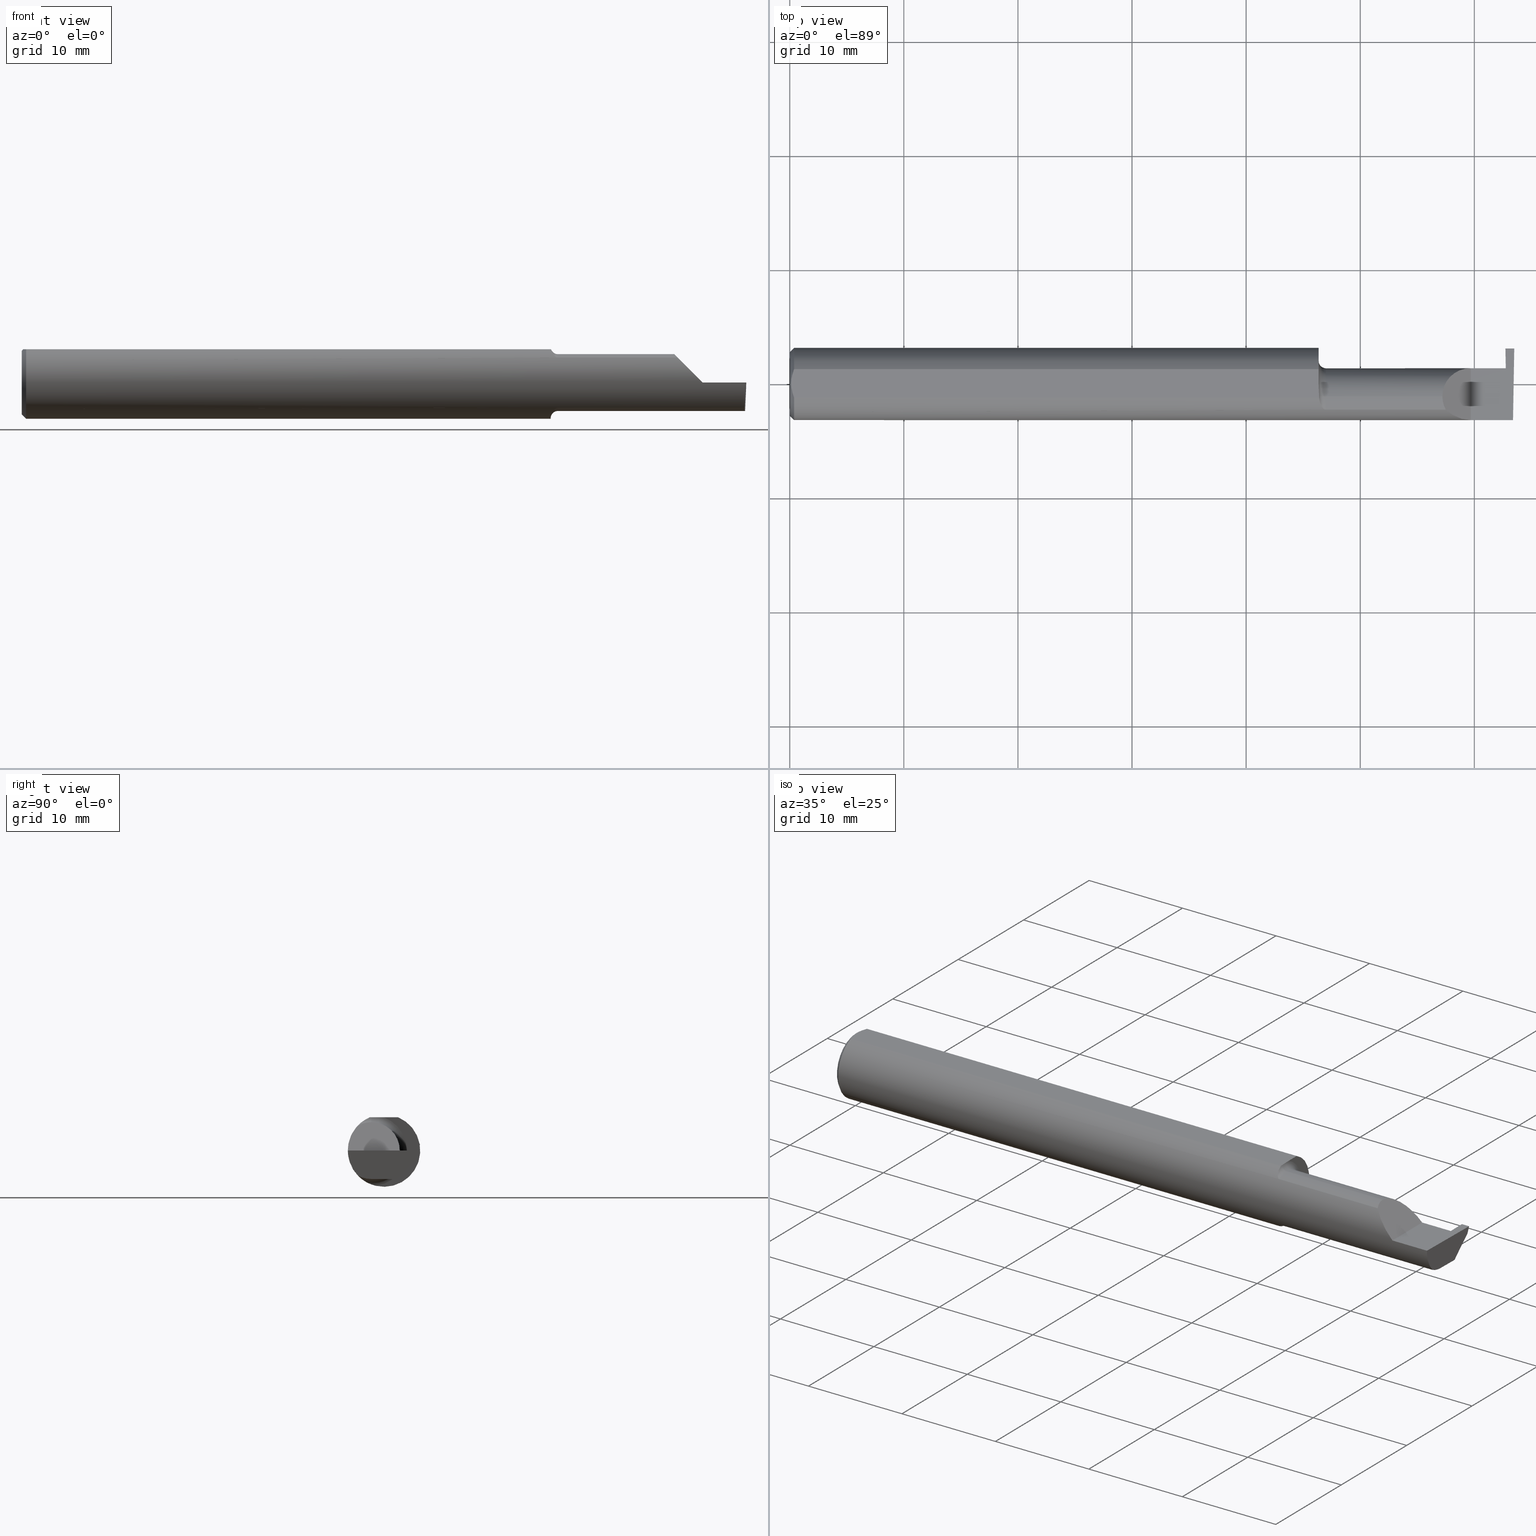
[diagram: canonical four-view strip — front | top / right | iso, engineering-drawing reading convention]
A machine part, canonical four-view strip (front | top / right | iso — engineering-drawing reading convention). The complete STEP part file that produces these views, byte-faithful:
ISO-10303-21;
HEADER;
FILE_DESCRIPTION (( 'STEP AP203' ),
    '1' );
FILE_NAME ('220809-GT030Q-10.STEP',
    '2024-07-12T17:46:40',
    ( '' ),
    ( '' ),
    'SwSTEP 2.0',
    'SolidWorks 2024',
    '' );
FILE_SCHEMA (( 'CONFIG_CONTROL_DESIGN' ));
ENDSEC;

DATA;
#1 = EDGE_LOOP ( 'NONE', ( #701, #705, #201 ) ) ;
#2 =( GEOMETRIC_REPRESENTATION_CONTEXT ( 3 ) GLOBAL_UNCERTAINTY_ASSIGNED_CONTEXT ( ( #249 ) ) GLOBAL_UNIT_ASSIGNED_CONTEXT ( ( #788, #237, #481 ) ) REPRESENTATION_CONTEXT ( 'NONE', 'WORKASPACE' ) );
#3 = DIRECTION ( 'NONE',  ( -1.000000000000000000, -1.575190080147340530E-15, 1.224646799147352221E-16 ) ) ;
#4 = ORIENTED_EDGE ( 'NONE', *, *, #484, .F. ) ;
#5 = PERSON_AND_ORGANIZATION_ROLE ( 'creator' ) ;
#6 = DIRECTION ( 'NONE',  ( 1.000000000000000000, 0.000000000000000000, 0.000000000000000000 ) ) ;
#7 = EDGE_CURVE ( 'NONE', #231, #279, #302, .T. ) ;
#8 = VERTEX_POINT ( 'NONE', #549 ) ;
#9 = DIRECTION ( 'NONE',  ( 0.000000000000000000, 0.000000000000000000, 1.000000000000000000 ) ) ;
#10 = AXIS2_PLACEMENT_3D ( 'NONE', #486, #127, #539 ) ;
#11 = CARTESIAN_POINT ( 'NONE',  ( 2.494033449660867152, -0.09015216647662485649, -0.08637192471845764330 ) ) ;
#12 = VECTOR ( 'NONE', #706, 39.37007874015748143 ) ;
#13 = CARTESIAN_POINT ( 'NONE',  ( 2.493072779947982820, -0.1248043149033065402, -0.09996577117162359916 ) ) ;
#14 = CARTESIAN_POINT ( 'NONE',  ( 0.01499999999999999944, 0.000000000000000000, 0.000000000000000000 ) ) ;
#15 = PERSON_AND_ORGANIZATION_ROLE ( 'design_supplier' ) ;
#16 = DIRECTION ( 'NONE',  ( -1.000000000000000000, -0.000000000000000000, -0.000000000000000000 ) ) ;
#17 = DIRECTION ( 'NONE',  ( 0.000000000000000000, 0.000000000000000000, 1.000000000000000000 ) ) ;
#18 = VERTEX_POINT ( 'NONE', #135 ) ;
#19 = ADVANCED_FACE ( 'NONE', ( #509 ), #444, .T. ) ;
#20 = PERSON_AND_ORGANIZATION ( #122, #144 ) ;
#21 = CARTESIAN_POINT ( 'NONE',  ( 0.000000000000000000, -0.04895916665957456698, 0.1148500000000000076 ) ) ;
#22 = DIRECTION ( 'NONE',  ( -0.7071067811865459074, 0.000000000000000000, 0.7071067811865492381 ) ) ;
#23 = AXIS2_PLACEMENT_3D ( 'NONE', #362, #6, #730 ) ;
#24 = ORIENTED_EDGE ( 'NONE', *, *, #209, .F. ) ;
#25 = VECTOR ( 'NONE', #637, 39.37007874015748143 ) ;
#26 = LINE ( 'NONE', #625, #113 ) ;
#27 = CARTESIAN_POINT ( 'NONE',  ( 0.01499999999999999944, -0.04895916665957456698, 0.1148500000000000076 ) ) ;
#28 = PLANE ( 'NONE',  #49 ) ;
#29 = EDGE_CURVE ( 'NONE', #523, #205, #345, .T. ) ;
#30 = CARTESIAN_POINT ( 'NONE',  ( 0.004999999999999990563, 1.454187663965904829E-17, 0.1148500000000000076 ) ) ;
#31 = ORIENTED_EDGE ( 'NONE', *, *, #262, .F. ) ;
#32 = CARTESIAN_POINT ( 'NONE',  ( 2.469500000000000028, 0.1221499999999999808, -3.306546357697866753E-19 ) ) ;
#33 = CARTESIAN_POINT ( 'NONE',  ( 2.494082244196984099, -0.07583965973232818791, -0.09404455760388207020 ) ) ;
#34 = ORIENTED_EDGE ( 'NONE', *, *, #187, .T. ) ;
#35 = EDGE_CURVE ( 'NONE', #18, #523, #96, .T. ) ;
#36 = CARTESIAN_POINT ( 'NONE',  ( 1.834117122045984649, -0.07738857672837949619, 0.09808127502721009083 ) ) ;
#37 = LOCAL_TIME ( 10, 46, 40.00000000000000000, #381 ) ;
#38 = PLANE ( 'NONE',  #371 ) ;
#39 = ORIENTED_EDGE ( 'NONE', *, *, #294, .F. ) ;
#40 = CARTESIAN_POINT ( 'NONE',  ( 1.849999999999999867, -0.04385000000000001397, 0.000000000000000000 ) ) ;
#41 = CARTESIAN_POINT ( 'NONE',  ( 2.496652745773396020, 0.07741163850316090667, -0.09800000000000001765 ) ) ;
#42 = VERTEX_POINT ( 'NONE', #320 ) ;
#43 = ADVANCED_FACE ( 'NONE', ( #578 ), #269, .F. ) ;
#44 = B_SPLINE_CURVE_WITH_KNOTS ( 'NONE', 3,
 ( #352, #648, #590, #348, #479, #760 ),
 .UNSPECIFIED., .F., .F.,
 ( 4, 2, 4 ),
 ( 0.009355882855462110265, 0.009420520835871136131, 0.009485158816280161997 ),
 .UNSPECIFIED. ) ;
#45 = DIRECTION ( 'NONE',  ( -1.000000000000000000, -0.000000000000000000, -0.000000000000000000 ) ) ;
#46 = ORIENTED_EDGE ( 'NONE', *, *, #466, .F. ) ;
#47 = AXIS2_PLACEMENT_3D ( 'NONE', #160, #463, #339 ) ;
#48 = FACE_OUTER_BOUND ( 'NONE', #718, .T. ) ;
#49 = AXIS2_PLACEMENT_3D ( 'NONE', #168, #769, #634 ) ;
#50 = ORIENTED_EDGE ( 'NONE', *, *, #753, .F. ) ;
#51 = CARTESIAN_POINT ( 'NONE',  ( 2.399999999999999911, 0.1221499999999999808, -3.306546357697866753E-19 ) ) ;
#52 = ADVANCED_FACE ( 'NONE', ( #748 ), #204, .T. ) ;
#53 = VERTEX_POINT ( 'NONE', #27 ) ;
#54 = CARTESIAN_POINT ( 'NONE',  ( 1.833278800716857893, -0.07573621487658345475, -0.09938639293507166295 ) ) ;
#55 = CARTESIAN_POINT ( 'NONE',  ( 1.824999999999999734, 0.1541499999999999537, 0.000000000000000000 ) ) ;
#56 = DIRECTION ( 'NONE',  ( 0.7071067811865476838, 8.659560562354930393E-17, 0.7071067811865473507 ) ) ;
#57 = AXIS2_PLACEMENT_3D ( 'NONE', #500, #213, #17 ) ;
#58 = VECTOR ( 'NONE', #723, 39.37007874015748143 ) ;
#59 = CARTESIAN_POINT ( 'NONE',  ( 1.844784064659362732, -0.08911389870154566573, -0.08746251087962758630 ) ) ;
#60 = DIRECTION ( 'NONE',  ( -1.000000000000000000, -0.000000000000000000, -0.000000000000000000 ) ) ;
#61 = ORIENTED_EDGE ( 'NONE', *, *, #786, .F. ) ;
#62 = LOCAL_TIME ( 10, 46, 40.00000000000000000, #259 ) ;
#63 = EDGE_CURVE ( 'NONE', #681, #8, #738, .T. ) ;
#64 = PLANE ( 'NONE',  #109 ) ;
#65 = ORIENTED_EDGE ( 'NONE', *, *, #544, .T. ) ;
#66 = SHAPE_DEFINITION_REPRESENTATION ( #312, #449 ) ;
#67 = ADVANCED_FACE ( 'NONE', ( #450 ), #515, .F. ) ;
#68 = CARTESIAN_POINT ( 'NONE',  ( 1.849999999999999867, -0.04385000000000001397, 0.000000000000000000 ) ) ;
#69 = LINE ( 'NONE', #315, #316 ) ;
#70 = APPLICATION_PROTOCOL_DEFINITION ( 'international standard', 'config_control_design', 1994, #443 ) ;
#71 = LINE ( 'NONE', #383, #166 ) ;
#72 = EDGE_LOOP ( 'NONE', ( #636, #211, #716, #766, #246, #487 ) ) ;
#73 = VECTOR ( 'NONE', #341, 39.37007874015748143 ) ;
#74 = PERSON_AND_ORGANIZATION ( #122, #144 ) ;
#75 = DIRECTION ( 'NONE',  ( 0.04089968566326913912, 0.0006089413954177153856, -0.9991630722274631449 ) ) ;
#76 = EDGE_CURVE ( 'NONE', #231, #588, #165, .T. ) ;
#77 = APPROVAL_STATUS ( 'not_yet_approved' ) ;
#78 = CARTESIAN_POINT ( 'NONE',  ( 2.500000000000000000, -0.2000000000000000111, 0.000000000000000000 ) ) ;
#79 = CARTESIAN_POINT ( 'NONE',  ( 1.826365755776839350, -0.04385000000000001397, 0.1148500000000000076 ) ) ;
#80 = DIRECTION ( 'NONE',  ( 0.000000000000000000, 0.000000000000000000, 1.000000000000000000 ) ) ;
#81 = DIRECTION ( 'NONE',  ( 0.000000000000000000, 0.000000000000000000, 1.000000000000000000 ) ) ;
#82 = VECTOR ( 'NONE', #482, 39.37007874015748143 ) ;
#83 = ORIENTED_EDGE ( 'NONE', *, *, #714, .F. ) ;
#84 = CC_DESIGN_APPROVAL ( #488, ( #92 ) ) ;
#85 = EDGE_CURVE ( 'NONE', #142, #557, #335, .T. ) ;
#86 = CARTESIAN_POINT ( 'NONE',  ( 1.827489051389917352, -0.05793447593726084449, 0.1110239341510882022 ) ) ;
#87 = CARTESIAN_POINT ( 'NONE',  ( 2.350000000000000089, 0.05414999999999985103, 1.836970198721028825E-17 ) ) ;
#88 = ORIENTED_EDGE ( 'NONE', *, *, #609, .T. ) ;
#89 = FACE_OUTER_BOUND ( 'NONE', #483, .T. ) ;
#90 = EDGE_CURVE ( 'NONE', #136, #563, #332, .T. ) ;
#91 = CARTESIAN_POINT ( 'NONE',  ( 2.497382703856816377, 0.1221956850741156286, -0.09996573249755572044 ) ) ;
#92 = PRODUCT_DEFINITION ( 'UNKNOWN', '', #219, #152 ) ;
#93 = ORIENTED_EDGE ( 'NONE', *, *, #474, .F. ) ;
#94 = DIRECTION ( 'NONE',  ( 0.000000000000000000, 0.000000000000000000, 1.000000000000000000 ) ) ;
#95 = DIRECTION ( 'NONE',  ( -0.01744642479411464067, -0.9998477995484629233, 2.816882764651547739E-16 ) ) ;
#96 = CIRCLE ( 'NONE', #546, 0.02500000000000007425 ) ;
#97 = VECTOR ( 'NONE', #536, 39.37007874015748143 ) ;
#98 = ORIENTED_EDGE ( 'NONE', *, *, #609, .F. ) ;
#99 = CARTESIAN_POINT ( 'NONE',  ( 1.826326891871132618, -0.04895916665958129077, 0.1148500000000000076 ) ) ;
#100 = LINE ( 'NONE', #41, #230 ) ;
#101 = ORIENTED_EDGE ( 'NONE', *, *, #673, .T. ) ;
#102 = ADVANCED_FACE ( 'NONE', ( #458 ), #754, .F. ) ;
#103 = DIRECTION ( 'NONE',  ( -1.000000000000000000, -0.000000000000000000, -0.000000000000000000 ) ) ;
#104 = FACE_OUTER_BOUND ( 'NONE', #611, .T. ) ;
#105 = ORIENTED_EDGE ( 'NONE', *, *, #562, .T. ) ;
#106 = CARTESIAN_POINT ( 'NONE',  ( 1.824999999999999734, 0.0001781444078671173391, 0.1148500000000000076 ) ) ;
#107 = LINE ( 'NONE', #425, #680 ) ;
#108 = ORIENTED_EDGE ( 'NONE', *, *, #639, .F. ) ;
#109 = AXIS2_PLACEMENT_3D ( 'NONE', #55, #489, #727 ) ;
#110 = CARTESIAN_POINT ( 'NONE',  ( 1.824999999999999734, -0.03284222813693378484, -0.1205938689030582739 ) ) ;
#111 = EDGE_CURVE ( 'NONE', #579, #344, #71, .T. ) ;
#112 = CARTESIAN_POINT ( 'NONE',  ( 2.474357246084736062, 0.07735405060767834573, -0.09800000000000001765 ) ) ;
#113 = VECTOR ( 'NONE', #386, 39.37007874015748143 ) ;
#114 = VERTEX_POINT ( 'NONE', #504 ) ;
#115 =( BOUNDED_CURVE ( )  B_SPLINE_CURVE ( 3, ( #499, #616, #260, #745 ),
 .UNSPECIFIED., .F., .F. ) 
 B_SPLINE_CURVE_WITH_KNOTS ( ( 4, 4 ),
 ( 5.791092865617128993, 6.283185307179586232 ),
 .UNSPECIFIED. ) 
 CURVE ( )  GEOMETRIC_REPRESENTATION_ITEM ( )  RATIONAL_B_SPLINE_CURVE ( ( 1.000000000000000000, 0.9799220177372781615, 0.9799220177372781615, 1.000000000000000000 ) ) 
 REPRESENTATION_ITEM ( '' )  );
#116 = CARTESIAN_POINT ( 'NONE',  ( 0.005932194444709715242, -0.01671525318617308672, 0.1148499999999999938 ) ) ;
#117 = EDGE_CURVE ( 'NONE', #695, #53, #267, .T. ) ;
#118 = DIRECTION ( 'NONE',  ( 0.01744642479411464761, 0.9998477995484629233, -2.135106780035675284E-18 ) ) ;
#119 = EDGE_CURVE ( 'NONE', #672, #579, #69, .T. ) ;
#120 = CARTESIAN_POINT ( 'NONE',  ( 0.01499999999999999944, 1.528971528735470422E-17, 0.1248500000000000026 ) ) ;
#121 = CARTESIAN_POINT ( 'NONE',  ( 1.825756598855983848, -0.04385000000000000703, -0.1168961077196328247 ) ) ;
#122 = PERSON ( 'UNSPECIFIED', 'UNSPECIFIED', 'UNSPECIFIED', ('UNSPECIFIED'), ('UNSPECIFIED'), ('UNSPECIFIED') ) ;
#123 = LINE ( 'NONE', #183, #574 ) ;
#124 = ORIENTED_EDGE ( 'NONE', *, *, #314, .T. ) ;
#125 = AXIS2_PLACEMENT_3D ( 'NONE', #581, #45, #290 ) ;
#126 = CARTESIAN_POINT ( 'NONE',  ( 0.01195732443765547617, -0.04120008761723503027, 0.1148500000000000076 ) ) ;
#127 = DIRECTION ( 'NONE',  ( -1.000000000000000000, -0.000000000000000000, -0.000000000000000000 ) ) ;
#128 = VERTEX_POINT ( 'NONE', #11 ) ;
#129 = APPROVAL_PERSON_ORGANIZATION ( #493, #495, #327 ) ;
#130 = ADVANCED_FACE ( 'NONE', ( #325 ), #566, .F. ) ;
#131 = APPROVAL_ROLE ( '' ) ;
#132 = CARTESIAN_POINT ( 'NONE',  ( 2.499132853025171297, 0.1117231085775382687, -0.02616302870350971019 ) ) ;
#133 = VERTEX_POINT ( 'NONE', #624 ) ;
#134 = CARTESIAN_POINT ( 'NONE',  ( 2.474354867654527723, 0.002850604310161250488, -0.09800000000000003153 ) ) ;
#135 = CARTESIAN_POINT ( 'NONE',  ( 1.825756598855983848, -0.04385000000000000703, -0.1168961077196328247 ) ) ;
#136 = VERTEX_POINT ( 'NONE', #79 ) ;
#137 = CALENDAR_DATE ( 2024, 12, 7 ) ;
#138 = CLOSED_SHELL ( 'NONE', ( #52, #589, #690, #506, #272, #342, #708, #530, #130, #19, #319, #540, #304, #448, #331, #67, #140, #102, #678, #43, #768, #223 ) ) ;
#139 = FACE_OUTER_BOUND ( 'NONE', #72, .T. ) ;
#140 = ADVANCED_FACE ( 'NONE', ( #329 ), #38, .F. ) ;
#141 = DIRECTION ( 'NONE',  ( 0.000000000000000000, 0.000000000000000000, 1.000000000000000000 ) ) ;
#142 = VERTEX_POINT ( 'NONE', #525 ) ;
#143 = B_SPLINE_CURVE_WITH_KNOTS ( 'NONE', 3,
 ( #424, #658, #116, #427, #126, #361 ),
 .UNSPECIFIED., .F., .F.,
 ( 4, 2, 4 ),
 ( 0.003658435455108827606, 0.004289327297787134258, 0.004920219140465441343 ),
 .UNSPECIFIED. ) ;
#144 = ORGANIZATION ( 'UNSPECIFIED', 'UNSPECIFIED', '' ) ;
#145 = CARTESIAN_POINT ( 'NONE',  ( 2.470482208140545310, 0.05416464901751172345, -0.02403639734835132102 ) ) ;
#146 = DIRECTION ( 'NONE',  ( 0.05230943362269021429, 0.0006086169641122232991, -0.9986307389317957695 ) ) ;
#147 = EDGE_LOOP ( 'NONE', ( #724, #31, #101, #735 ) ) ;
#148 = DIRECTION ( 'NONE',  ( 0.000000000000000000, 0.000000000000000000, 1.000000000000000000 ) ) ;
#149 = CARTESIAN_POINT ( 'NONE',  ( 1.824999999999999956, 0.05414999999999996899, 8.266365894244626938E-17 ) ) ;
#150 = EDGE_LOOP ( 'NONE', ( #490, #412, #360, #397, #214 ) ) ;
#151 = EDGE_CURVE ( 'NONE', #133, #681, #614, .T. ) ;
#152 = DESIGN_CONTEXT ( 'detailed design', #443, 'design' ) ;
#153 = FACE_OUTER_BOUND ( 'NONE', #150, .T. ) ;
#154 = AXIS2_PLACEMENT_3D ( 'NONE', #78, #208, #376 ) ;
#155 = ORIENTED_EDGE ( 'NONE', *, *, #322, .F. ) ;
#156 = CARTESIAN_POINT ( 'NONE',  ( 2.495688583004118666, -0.1248499869621840785, -5.705736120969982501E-05 ) ) ;
#157 = CARTESIAN_POINT ( 'NONE',  ( 0.004999999999999962808, 0.008410227287019804779, 0.1148500000000000076 ) ) ;
#158 = ORIENTED_EDGE ( 'NONE', *, *, #726, .F. ) ;
#159 = CARTESIAN_POINT ( 'NONE',  ( 2.499907402661638578, 0.1211597610527450630, -0.002875862722116008779 ) ) ;
#160 = CARTESIAN_POINT ( 'NONE',  ( 0.01499999999999999944, 0.000000000000000000, 0.000000000000000000 ) ) ;
#161 = ORIENTED_EDGE ( 'NONE', *, *, #197, .T. ) ;
#162 = DIRECTION ( 'NONE',  ( 0.000000000000000000, 0.000000000000000000, 1.000000000000000000 ) ) ;
#163 = EDGE_CURVE ( 'NONE', #588, #695, #286, .T. ) ;
#164 = CARTESIAN_POINT ( 'NONE',  ( 1.824999999999999734, 0.000000000000000000, 0.000000000000000000 ) ) ;
#165 = CIRCLE ( 'NONE', #606, 0.1098500000000000032 ) ;
#166 = VECTOR ( 'NONE', #146, 39.37007874015748143 ) ;
#167 = ORIENTED_EDGE ( 'NONE', *, *, #726, .T. ) ;
#168 = CARTESIAN_POINT ( 'NONE',  ( 2.474734127201016598, 0.1222413620301363024, -0.1499086240528643976 ) ) ;
#169 = CARTESIAN_POINT ( 'NONE',  ( 0.004999999999999990563, 1.454187663965904829E-17, 0.1148500000000000076 ) ) ;
#170 = ORIENTED_EDGE ( 'NONE', *, *, #174, .T. ) ;
#171 = CARTESIAN_POINT ( 'NONE',  ( 1.825400391910593445, -0.01449986171080065549, 0.1148500000000000076 ) ) ;
#172 = FACE_OUTER_BOUND ( 'NONE', #429, .T. ) ;
#173 = EDGE_LOOP ( 'NONE', ( #451, #668, #83, #170, #541 ) ) ;
#174 = EDGE_CURVE ( 'NONE', #465, #344, #532, .T. ) ;
#175 = CARTESIAN_POINT ( 'NONE',  ( 0.000000000000000000, 0.000000000000000000, 0.000000000000000000 ) ) ;
#176 = CARTESIAN_POINT ( 'NONE',  ( 2.470482208140545755, 0.1138861372810480027, -0.02400000000000000397 ) ) ;
#177 = ORIENTED_EDGE ( 'NONE', *, *, #575, .F. ) ;
#178 = CARTESIAN_POINT ( 'NONE',  ( 2.470482208140547531, -2.417871453979867358, -0.02554298336611329073 ) ) ;
#179 = APPROVAL ( #620, 'UNSPECIFIED' ) ;
#180 = CARTESIAN_POINT ( 'NONE',  ( 1.824999999999999956, -0.04385000000000001397, 0.09799999999999998990 ) ) ;
#181 = B_SPLINE_CURVE_WITH_KNOTS ( 'NONE', 3,
 ( #99, #86, #224, #36, #647, #402, #282, #527, #406, #772 ),
 .UNSPECIFIED., .F., .F.,
 ( 4, 2, 2, 2, 4 ),
 ( 5.065792501960267767E-07, 0.0007388407002080928359, 0.001108007760687040530, 0.001292591290926509064, 0.001477174821165977382 ),
 .UNSPECIFIED. ) ;
#182 = ORIENTED_EDGE ( 'NONE', *, *, #163, .T. ) ;
#183 = CARTESIAN_POINT ( 'NONE',  ( 2.494380489674781209, -0.1999019447116721915, 6.881915332554903690E-19 ) ) ;
#184 = ORIENTED_EDGE ( 'NONE', *, *, #35, .T. ) ;
#185 = LENGTH_MEASURE_WITH_UNIT ( LENGTH_MEASURE( 0.02539999999999999897 ), #729 );
#186 = DIRECTION ( 'NONE',  ( 0.000000000000000000, 0.000000000000000000, 1.000000000000000000 ) ) ;
#187 = EDGE_CURVE ( 'NONE', #42, #114, #100, .T. ) ;
#188 = ORIENTED_EDGE ( 'NONE', *, *, #366, .T. ) ;
#189 = AXIS2_PLACEMENT_3D ( 'NONE', #693, #200, #742 ) ;
#190 = SECURITY_CLASSIFICATION_LEVEL ( 'unclassified' ) ;
#191 = CARTESIAN_POINT ( 'NONE',  ( 2.263628075281542973, -0.09015216647662456506, 0.08637192471845794861 ) ) ;
#192 = ORIENTED_EDGE ( 'NONE', *, *, #398, .F. ) ;
#193 = SECURITY_CLASSIFICATION ( '', '', #190 ) ;
#194 = CARTESIAN_POINT ( 'NONE',  ( 2.474353376795600301, -0.04385000000000004172, -0.09799999999999998990 ) ) ;
#195 = CARTESIAN_POINT ( 'NONE',  ( 2.399999999999999911, 0.1138861372810479888, -0.02400000000000000050 ) ) ;
#196 = EDGE_LOOP ( 'NONE', ( #353, #426, #390, #363, #124, #274, #785, #46, #533, #253, #619, #24, #50, #591 ) ) ;
#197 = EDGE_CURVE ( 'NONE', #128, #114, #698, .T. ) ;
#198 = COORDINATED_UNIVERSAL_TIME_OFFSET ( 8, 0, .BEHIND. ) ;
#199 = CARTESIAN_POINT ( 'NONE',  ( 0.000000000000000000, 0.000000000000000000, -0.1098500000000000032 ) ) ;
#200 = DIRECTION ( 'NONE',  ( -1.000000000000000000, -0.000000000000000000, -0.000000000000000000 ) ) ;
#201 = ORIENTED_EDGE ( 'NONE', *, *, #280, .F. ) ;
#202 = CARTESIAN_POINT ( 'NONE',  ( 2.499227245409318954, 0.1138861372810479888, -0.02400000000000000050 ) ) ;
#203 = CC_DESIGN_PERSON_AND_ORGANIZATION_ASSIGNMENT ( #732, #15, ( #219 ) ) ;
#204 = CYLINDRICAL_SURFACE ( 'NONE', #57, 0.09799999999999998990 ) ;
#205 = VERTEX_POINT ( 'NONE', #635 ) ;
#206 = VECTOR ( 'NONE', #531, 39.37007874015748854 ) ;
#207 = PERSON_AND_ORGANIZATION_ROLE ( 'classification_officer' ) ;
#208 = DIRECTION ( 'NONE',  ( -1.224646799147352221E-16, 0.000000000000000000, -1.000000000000000000 ) ) ;
#209 = EDGE_CURVE ( 'NONE', #646, #557, #775, .T. ) ;
#210 = DIRECTION ( 'NONE',  ( -1.000000000000000000, -0.000000000000000000, -0.000000000000000000 ) ) ;
#211 = ORIENTED_EDGE ( 'NONE', *, *, #753, .T. ) ;
#212 = CARTESIAN_POINT ( 'NONE',  ( 2.159749999999999837, -0.09015216647662485649, 0.08637192471845764330 ) ) ;
#213 = DIRECTION ( 'NONE',  ( -1.000000000000000000, -0.000000000000000000, -0.000000000000000000 ) ) ;
#214 = ORIENTED_EDGE ( 'NONE', *, *, #163, .F. ) ;
#215 = LINE ( 'NONE', #462, #73 ) ;
#216 = CARTESIAN_POINT ( 'NONE',  ( 2.399999999999999911, 0.1221499999999999808, -3.306546357697866753E-19 ) ) ;
#217 = AXIS2_PLACEMENT_3D ( 'NONE', #587, #395, #631 ) ;
#218 = ORIENTED_EDGE ( 'NONE', *, *, #474, .T. ) ;
#219 = PRODUCT_DEFINITION_FORMATION_WITH_SPECIFIED_SOURCE ( 'ANY', '', #550, .NOT_KNOWN. ) ;
#220 = CARTESIAN_POINT ( 'NONE',  ( 1.826365755776839350, -0.04385000000000001397, 0.1148500000000000076 ) ) ;
#221 = DIRECTION ( 'NONE',  ( 0.02618093032612054533, 0.000000000000000000, 0.9996572206948034500 ) ) ;
#222 = ORIENTED_EDGE ( 'NONE', *, *, #436, .F. ) ;
#223 = ADVANCED_FACE ( 'NONE', ( #104 ), #700, .F. ) ;
#224 = CARTESIAN_POINT ( 'NONE',  ( 1.829335346929731765, -0.06618116991733531684, 0.1062694618618282988 ) ) ;
#225 = CARTESIAN_POINT ( 'NONE',  ( 0.01193974418109659125, 0.04115525648180412555, 0.1148500000000000215 ) ) ;
#226 = ORIENTED_EDGE ( 'NONE', *, *, #314, .F. ) ;
#227 = LINE ( 'NONE', #586, #270 ) ;
#228 = DIRECTION ( 'NONE',  ( 0.000000000000000000, 0.000000000000000000, -1.000000000000000000 ) ) ;
#229 = AXIS2_PLACEMENT_3D ( 'NONE', #559, #561, #455 ) ;
#230 = VECTOR ( 'NONE', #95, 39.37007874015748854 ) ;
#231 = VERTEX_POINT ( 'NONE', #713 ) ;
#232 = AXIS2_PLACEMENT_3D ( 'NONE', #175, #244, #417 ) ;
#233 = DIRECTION ( 'NONE',  ( 0.9991632577875578791, -2.492636860402690764E-05, 0.04089967806756395624 ) ) ;
#234 = CARTESIAN_POINT ( 'NONE',  ( 2.495690077103728921, -0.1248499999950965084, 1.733801157256528502E-17 ) ) ;
#235 = EDGE_CURVE ( 'NONE', #239, #279, #747, .T. ) ;
#236 = VERTEX_POINT ( 'NONE', #400 ) ;
#237 =( NAMED_UNIT ( * ) PLANE_ANGLE_UNIT ( ) SI_UNIT ( $, .RADIAN. ) );
#238 = LINE ( 'NONE', #358, #82 ) ;
#239 = VERTEX_POINT ( 'NONE', #283 ) ;
#240 = CARTESIAN_POINT ( 'NONE',  ( 1.825756598855983848, -0.04385000000000000703, -0.1168961077196328247 ) ) ;
#241 = DIRECTION ( 'NONE',  ( -0.03866673033866092207, 0.3253246823342271776, 0.9448114812114909444 ) ) ;
#242 = ORIENTED_EDGE ( 'NONE', *, *, #257, .F. ) ;
#243 = CIRCLE ( 'NONE', #560, 0.09799999999999998990 ) ;
#244 = DIRECTION ( 'NONE',  ( 0.000000000000000000, 0.000000000000000000, 1.000000000000000000 ) ) ;
#245 = DIRECTION ( 'NONE',  ( 0.000000000000000000, -1.000000000000000000, 2.817424862263050982E-16 ) ) ;
#246 = ORIENTED_EDGE ( 'NONE', *, *, #90, .T. ) ;
#247 = CARTESIAN_POINT ( 'NONE',  ( 1.849999999999999867, -0.09015216647662482874, -0.08637192471845765718 ) ) ;
#248 = EDGE_CURVE ( 'NONE', #239, #695, #333, .T. ) ;
#249 = UNCERTAINTY_MEASURE_WITH_UNIT (LENGTH_MEASURE( 1.000000000000000082E-05 ), #788, 'distance_accuracy_value', 'NONE');
#250 = FACE_OUTER_BOUND ( 'NONE', #511, .T. ) ;
#251 = VERTEX_POINT ( 'NONE', #645 ) ;
#252 = PLANE ( 'NONE',  #303 ) ;
#253 = ORIENTED_EDGE ( 'NONE', *, *, #248, .F. ) ;
#254 = VECTOR ( 'NONE', #470, 39.37007874015748854 ) ;
#255 = CARTESIAN_POINT ( 'NONE',  ( 0.000000000000000000, 0.000000000000000000, 0.000000000000000000 ) ) ;
#256 = CARTESIAN_POINT ( 'NONE',  ( 2.474356049968030380, -2.417826382074300895, -0.09949785648876638411 ) ) ;
#257 = EDGE_CURVE ( 'NONE', #563, #523, #643, .T. ) ;
#258 = VERTEX_POINT ( 'NONE', #234 ) ;
#259 = COORDINATED_UNIVERSAL_TIME_OFFSET ( 8, 0, .BEHIND. ) ;
#260 = CARTESIAN_POINT ( 'NONE',  ( 2.252000000000000668, -0.06008937020638518284, 0.09799999999999996214 ) ) ;
#261 = DIRECTION ( 'NONE',  ( 0.000000000000000000, -1.000000000000000000, 0.000000000000000000 ) ) ;
#262 = EDGE_CURVE ( 'NONE', #349, #136, #44, .T. ) ;
#263 = PRODUCT_RELATED_PRODUCT_CATEGORY ( 'detail', '', ( #550 ) ) ;
#264 = DIRECTION ( 'NONE',  ( -1.000000000000000000, -0.000000000000000000, -0.000000000000000000 ) ) ;
#265 = DIRECTION ( 'NONE',  ( -0.7071067811865492381, 0.000000000000000000, -0.7071067811865459074 ) ) ;
#266 = DATE_AND_TIME ( #744, #321 ) ;
#267 = CIRCLE ( 'NONE', #189, 0.1248500000000000026 ) ;
#268 = CARTESIAN_POINT ( 'NONE',  ( 2.470160734290016702, 0.05314349951121604548, -0.01618353831829628942 ) ) ;
#269 = PLANE ( 'NONE',  #642 ) ;
#270 = VECTOR ( 'NONE', #472, 39.37007874015748143 ) ;
#271 = CARTESIAN_POINT ( 'NONE',  ( 1.824999999999999734, -0.04385000000000001397, 0.000000000000000000 ) ) ;
#272 = ADVANCED_FACE ( 'NONE', ( #153 ), #393, .T. ) ;
#273 = DIRECTION ( 'NONE',  ( -0.000000000000000000, 1.000000000000000000, 0.000000000000000000 ) ) ;
#274 = ORIENTED_EDGE ( 'NONE', *, *, #617, .F. ) ;
#275 = LINE ( 'NONE', #212, #25 ) ;
#276 = DIRECTION ( 'NONE',  ( -7.219510806010321669E-16, 0.9999998142845092364, 0.0006094513490878469570 ) ) ;
#277 = ORIENTED_EDGE ( 'NONE', *, *, #714, .T. ) ;
#278 = CARTESIAN_POINT ( 'NONE',  ( 2.474353376795600301, -0.04385000000000004172, -0.09799999999999998990 ) ) ;
#279 = VERTEX_POINT ( 'NONE', #30 ) ;
#280 = EDGE_CURVE ( 'NONE', #567, #579, #528, .T. ) ;
#281 = APPROVAL_PERSON_ORGANIZATION ( #20, #488, #677 ) ;
#282 = CARTESIAN_POINT ( 'NONE',  ( 1.841486677516483983, -0.08696861555848788006, 0.08959154238187722052 ) ) ;
#283 = CARTESIAN_POINT ( 'NONE',  ( 0.01499999999999987454, 0.04895916665957496944, 0.1148500000000000076 ) ) ;
#284 = EDGE_LOOP ( 'NONE', ( #496, #771, #370, #356, #554 ) ) ;
#285 = CARTESIAN_POINT ( 'NONE',  ( 2.475918903665494941, 0.05424136207626867323, -0.1499086997478104033 ) ) ;
#286 = LINE ( 'NONE', #593, #97 ) ;
#287 = ORIENTED_EDGE ( 'NONE', *, *, #777, .T. ) ;
#288 = CARTESIAN_POINT ( 'NONE',  ( 1.830064983703084680, -0.06736177101644134912, -0.1052426774175049123 ) ) ;
#289 = EDGE_CURVE ( 'NONE', #653, #465, #301, .T. ) ;
#290 = DIRECTION ( 'NONE',  ( 0.000000000000000000, 0.000000000000000000, 1.000000000000000000 ) ) ;
#291 = AXIS2_PLACEMENT_3D ( 'NONE', #255, #621, #80 ) ;
#292 = ORIENTED_EDGE ( 'NONE', *, *, #517, .F. ) ;
#293 = CARTESIAN_POINT ( 'NONE',  ( 1.847259638933031134, -0.09015216647662505078, -0.08637192471845750452 ) ) ;
#294 = EDGE_CURVE ( 'NONE', #258, #251, #428, .T. ) ;
#295 = CARTESIAN_POINT ( 'NONE',  ( 2.317406910344188997, -0.1248500000000000165, 0.03259308965581150103 ) ) ;
#296 = CC_DESIGN_PERSON_AND_ORGANIZATION_ASSIGNMENT ( #687, #615, ( #219 ) ) ;
#297 = ORIENTED_EDGE ( 'NONE', *, *, #617, .T. ) ;
#298 = DIRECTION ( 'NONE',  ( 1.000000000000000000, -0.000000000000000000, -0.000000000000000000 ) ) ;
#299 = EDGE_LOOP ( 'NONE', ( #218, #337 ) ) ;
#300 = CARTESIAN_POINT ( 'NONE',  ( 1.826227715916084904, -0.04883822427082843559, -0.1150249279297937410 ) ) ;
#301 = LINE ( 'NONE', #112, #347 ) ;
#302 = LINE ( 'NONE', #120, #694 ) ;
#303 = AXIS2_PLACEMENT_3D ( 'NONE', #789, #600, #245 ) ;
#304 = ADVANCED_FACE ( 'NONE', ( #48 ), #64, .T. ) ;
#305 = LINE ( 'NONE', #553, #58 ) ;
#306 = LOCAL_TIME ( 10, 46, 40.00000000000000000, #623 ) ;
#307 = ORIENTED_EDGE ( 'NONE', *, *, #555, .F. ) ;
#308 = DATE_AND_TIME ( #137, #37 ) ;
#309 =( BOUNDED_CURVE ( )  B_SPLINE_CURVE ( 3, ( #346, #410, #703, #156 ),
 .UNSPECIFIED., .F., .F. ) 
 B_SPLINE_CURVE_WITH_KNOTS ( ( 4, 4 ),
 ( 0.2190942387645160583, 0.9826237902196512941 ),
 .UNSPECIFIED. ) 
 CURVE ( )  GEOMETRIC_REPRESENTATION_ITEM ( )  RATIONAL_B_SPLINE_CURVE ( ( 1.000000000000000000, 0.9520057322288819623, 0.9520057322288819623, 1.000000000000000000 ) ) 
 REPRESENTATION_ITEM ( '' )  );
#310 = PLANE ( 'NONE',  #23 ) ;
#311 = ORIENTED_EDGE ( 'NONE', *, *, #568, .F. ) ;
#312 = PRODUCT_DEFINITION_SHAPE ( 'NONE', 'NONE',  #92 ) ;
#313 = PLANE ( 'NONE',  #154 ) ;
#314 = EDGE_CURVE ( 'NONE', #251, #459, #441, .T. ) ;
#315 = CARTESIAN_POINT ( 'NONE',  ( 2.470482208140545755, 0.05416464901750964872, -0.02403639734835131408 ) ) ;
#316 = VECTOR ( 'NONE', #75, 39.37007874015748143 ) ;
#317 = APPROVAL_DATE_TIME ( #751, #495 ) ;
#318 = DIRECTION ( 'NONE',  ( 0.000000000000000000, 0.000000000000000000, 1.000000000000000000 ) ) ;
#319 = ADVANCED_FACE ( 'NONE', ( #717 ), #310, .F. ) ;
#320 = CARTESIAN_POINT ( 'NONE',  ( 2.495997960279815686, 0.03988613728104775658, -0.09799999999999996214 ) ) ;
#321 = LOCAL_TIME ( 10, 46, 40.00000000000000000, #569 ) ;
#322 = EDGE_CURVE ( 'NONE', #728, #563, #243, .T. ) ;
#323 = APPROVAL_STATUS ( 'not_yet_approved' ) ;
#324 = DIRECTION ( 'NONE',  ( -1.000000000000000000, -0.000000000000000000, -0.000000000000000000 ) ) ;
#325 = FACE_OUTER_BOUND ( 'NONE', #601, .T. ) ;
#326 = ORIENTED_EDGE ( 'NONE', *, *, #375, .T. ) ;
#327 = APPROVAL_ROLE ( '' ) ;
#328 = CARTESIAN_POINT ( 'NONE',  ( 2.469831655309489893, 0.05414656493488106265, -0.008143655253979704967 ) ) ;
#329 = FACE_OUTER_BOUND ( 'NONE', #649, .T. ) ;
#330 = ORIENTED_EDGE ( 'NONE', *, *, #555, .T. ) ;
#331 = ADVANCED_FACE ( 'NONE', ( #172 ), #252, .F. ) ;
#332 = CIRCLE ( 'NONE', #512, 0.02500000000000007425 ) ;
#333 = CIRCLE ( 'NONE', #47, 0.1248500000000000026 ) ;
#334 = FACE_OUTER_BOUND ( 'NONE', #709, .T. ) ;
#335 = LINE ( 'NONE', #613, #665 ) ;
#336 = LOCAL_TIME ( 10, 46, 40.00000000000000000, #198 ) ;
#337 = ORIENTED_EDGE ( 'NONE', *, *, #76, .T. ) ;
#338 = FACE_OUTER_BOUND ( 'NONE', #743, .T. ) ;
#339 = DIRECTION ( 'NONE',  ( 0.000000000000000000, 0.000000000000000000, 1.000000000000000000 ) ) ;
#340 = ORIENTED_EDGE ( 'NONE', *, *, #650, .F. ) ;
#341 = DIRECTION ( 'NONE',  ( -1.000000000000000000, -0.000000000000000000, -0.000000000000000000 ) ) ;
#342 = ADVANCED_FACE ( 'NONE', ( #784 ), #666, .T. ) ;
#343 = CARTESIAN_POINT ( 'NONE',  ( 2.470385764151949104, 0.1157284569920692952, -0.02215768028897870112 ) ) ;
#344 = VERTEX_POINT ( 'NONE', #781 ) ;
#345 = CIRCLE ( 'NONE', #229, 0.09799999999999998990 ) ;
#346 = CARTESIAN_POINT ( 'NONE',  ( 2.494033449660867152, -0.09015216647662485649, -0.08637192471845764330 ) ) ;
#347 = VECTOR ( 'NONE', #656, 39.37007874015748143 ) ;
#348 = CARTESIAN_POINT ( 'NONE',  ( 1.826362484150211518, -0.04555293709217378417, 0.1148500000000000076 ) ) ;
#349 = VERTEX_POINT ( 'NONE', #372 ) ;
#350 = CC_DESIGN_DATE_AND_TIME_ASSIGNMENT ( #453, #740, ( #92 ) ) ;
#351 = CARTESIAN_POINT ( 'NONE',  ( 1.824999999999999956, -0.04385000000000001397, 0.000000000000000000 ) ) ;
#352 = CARTESIAN_POINT ( 'NONE',  ( 1.826326891871132618, -0.04895916665958129077, 0.1148500000000000076 ) ) ;
#353 = ORIENTED_EDGE ( 'NONE', *, *, #762, .F. ) ;
#354 = LINE ( 'NONE', #159, #699 ) ;
#355 = DIRECTION ( 'NONE',  ( 0.000000000000000000, -0.9455185755993165131, 0.3255681544571576991 ) ) ;
#356 = ORIENTED_EDGE ( 'NONE', *, *, #174, .F. ) ;
#357 = CARTESIAN_POINT ( 'NONE',  ( 2.495688583004118666, -0.1248499869621840785, -5.705736120969982501E-05 ) ) ;
#358 = CARTESIAN_POINT ( 'NONE',  ( 2.470385764151949548, 0.1157284569920692535, -0.02215768028897875316 ) ) ;
#359 = TOROIDAL_SURFACE ( 'NONE', #473, 0.1230000000000000121, 0.02500000000000007772 ) ;
#360 = ORIENTED_EDGE ( 'NONE', *, *, #235, .F. ) ;
#361 = CARTESIAN_POINT ( 'NONE',  ( 0.01499999999999999944, -0.04895916665957456698, 0.1148500000000000076 ) ) ;
#362 = CARTESIAN_POINT ( 'NONE',  ( 0.000000000000000000, 0.000000000000000000, 0.000000000000000000 ) ) ;
#363 = ORIENTED_EDGE ( 'NONE', *, *, #294, .T. ) ;
#364 = FACE_OUTER_BOUND ( 'NONE', #1, .T. ) ;
#365 = CARTESIAN_POINT ( 'NONE',  ( 3.749399456654637998E-32, -0.1248500000000000026, 3.061616997868380676E-16 ) ) ;
#366 = EDGE_CURVE ( 'NONE', #258, #471, #123, .T. ) ;
#367 = ORIENTED_EDGE ( 'NONE', *, *, #430, .T. ) ;
#368 = CARTESIAN_POINT ( 'NONE',  ( 1.825242610568497792, -0.03840785182185595115, -0.1189375631818110762 ) ) ;
#369 = LINE ( 'NONE', #418, #445 ) ;
#370 = ORIENTED_EDGE ( 'NONE', *, *, #111, .T. ) ;
#371 = AXIS2_PLACEMENT_3D ( 'NONE', #216, #355, #403 ) ;
#372 = CARTESIAN_POINT ( 'NONE',  ( 1.826326891871132618, -0.04895916665958129077, 0.1148500000000000076 ) ) ;
#373 = AXIS2_PLACEMENT_3D ( 'NONE', #40, #592, #162 ) ;
#374 = ORIENTED_EDGE ( 'NONE', *, *, #736, .T. ) ;
#375 = EDGE_CURVE ( 'NONE', #133, #563, #542, .T. ) ;
#376 = DIRECTION ( 'NONE',  ( -1.000000000000000000, 0.000000000000000000, 1.224646799147352221E-16 ) ) ;
#377 = DIRECTION ( 'NONE',  ( 0.000000000000000000, 0.0006094513490878162741, -0.9999998142845092364 ) ) ;
#378 = CALENDAR_DATE ( 2024, 12, 7 ) ;
#379 = CARTESIAN_POINT ( 'NONE',  ( 2.472853341463135290, 0.03970102213383032430, -0.06931214282740398580 ) ) ;
#380 = DIRECTION ( 'NONE',  ( -0.000000000000000000, 1.000000000000000000, 1.224646799147353207E-16 ) ) ;
#381 = COORDINATED_UNIVERSAL_TIME_OFFSET ( 8, 0, .BEHIND. ) ;
#382 = DIRECTION ( 'NONE',  ( 0.000000000000000000, 0.000000000000000000, 1.000000000000000000 ) ) ;
#383 = CARTESIAN_POINT ( 'NONE',  ( 2.474356049968028604, 0.05420972092307642376, -0.09799127047100440746 ) ) ;
#384 = ORIENTED_EDGE ( 'NONE', *, *, #786, .T. ) ;
#385 = APPROVAL_DATE_TIME ( #308, #488 ) ;
#386 = DIRECTION ( 'NONE',  ( -1.000000000000000000, -0.000000000000000000, -0.000000000000000000 ) ) ;
#387 = CARTESIAN_POINT ( 'NONE',  ( 2.350000000000000089, -0.2000000000000000111, 1.836970198721028825E-17 ) ) ;
#388 = EDGE_CURVE ( 'NONE', #236, #8, #107, .T. ) ;
#389 = APPLICATION_CONTEXT ( 'configuration controlled 3d designs of mechanical parts and assemblies' ) ;
#390 = ORIENTED_EDGE ( 'NONE', *, *, #517, .T. ) ;
#391 = CARTESIAN_POINT ( 'NONE',  ( 2.469500000000000028, -0.04385000000000001397, 0.000000000000000000 ) ) ;
#392 = DIRECTION ( 'NONE',  ( 0.000000000000000000, 0.000000000000000000, -1.000000000000000000 ) ) ;
#393 = CONICAL_SURFACE ( 'NONE', #217, 0.1248500000000000026, 0.7853981633974480570 ) ;
#394 = CYLINDRICAL_SURFACE ( 'NONE', #715, 0.09799999999999998990 ) ;
#395 = DIRECTION ( 'NONE',  ( 1.000000000000000000, 0.000000000000000000, 0.000000000000000000 ) ) ;
#396 = AXIS2_PLACEMENT_3D ( 'NONE', #391, #565, #318 ) ;
#397 = ORIENTED_EDGE ( 'NONE', *, *, #248, .T. ) ;
#398 = EDGE_CURVE ( 'NONE', #344, #419, #238, .T. ) ;
#399 = LINE ( 'NONE', #285, #206 ) ;
#400 = CARTESIAN_POINT ( 'NONE',  ( 2.470684773821554714, 0.05415000000000003144, 1.033206487548650521E-17 ) ) ;
#401 = ORIENTED_EDGE ( 'NONE', *, *, #117, .T. ) ;
#402 = CARTESIAN_POINT ( 'NONE',  ( 1.839990549600782677, -0.08554147198593003987, 0.09096407607054025901 ) ) ;
#403 = DIRECTION ( 'NONE',  ( 0.000000000000000000, -0.3255681544571576991, -0.9455185755993165131 ) ) ;
#404 = CC_DESIGN_DATE_AND_TIME_ASSIGNMENT ( #432, #513, ( #193 ) ) ;
#405 = ORIENTED_EDGE ( 'NONE', *, *, #29, .F. ) ;
#406 = CARTESIAN_POINT ( 'NONE',  ( 1.847502509400850368, -0.09015216647698168217, 0.08637192471808535776 ) ) ;
#407 = DIRECTION ( 'NONE',  ( 1.000000000000000000, 0.000000000000000000, 0.000000000000000000 ) ) ;
#408 = ORIENTED_EDGE ( 'NONE', *, *, #235, .T. ) ;
#409 = AXIS2_PLACEMENT_3D ( 'NONE', #178, #233, #651 ) ;
#410 = CARTESIAN_POINT ( 'NONE',  ( 2.494256244271084721, -0.1126860773865890758, -0.06285177167860768466 ) ) ;
#411 = CARTESIAN_POINT ( 'NONE',  ( 0.009410502401328750890, 0.03310661131402438395, 0.1148499999999999938 ) ) ;
#412 = ORIENTED_EDGE ( 'NONE', *, *, #7, .T. ) ;
#413 = EDGE_CURVE ( 'NONE', #557, #239, #662, .T. ) ;
#414 = CARTESIAN_POINT ( 'NONE',  ( 1.824999999999999734, -0.02715330672748003313, -0.1218614805168695830 ) ) ;
#415 = CARTESIAN_POINT ( 'NONE',  ( 1.849999999999999867, -0.04385000000000001397, 0.000000000000000000 ) ) ;
#416 = ORIENTED_EDGE ( 'NONE', *, *, #151, .T. ) ;
#417 = DIRECTION ( 'NONE',  ( 1.000000000000000000, 0.000000000000000000, 0.000000000000000000 ) ) ;
#418 = CARTESIAN_POINT ( 'NONE',  ( 2.469396089435561326, 0.1230242573026207875, 0.002539027568158832172 ) ) ;
#419 = VERTEX_POINT ( 'NONE', #176 ) ;
#420 = CARTESIAN_POINT ( 'NONE',  ( 1.826929090759343399, -0.05370719728932732417, -0.1128289886859671770 ) ) ;
#421 = EDGE_CURVE ( 'NONE', #731, #471, #607, .T. ) ;
#422 = CYLINDRICAL_SURFACE ( 'NONE', #667, 0.09799999999999998990 ) ;
#423 = ORIENTED_EDGE ( 'NONE', *, *, #413, .T. ) ;
#424 = CARTESIAN_POINT ( 'NONE',  ( 0.004999999999999990563, 1.454187663965904829E-17, 0.1148500000000000076 ) ) ;
#425 = CARTESIAN_POINT ( 'NONE',  ( 2.499999999999999556, 0.05415000000000008695, 4.902684361075352417E-32 ) ) ;
#426 = ORIENTED_EDGE ( 'NONE', *, *, #650, .T. ) ;
#427 = CARTESIAN_POINT ( 'NONE',  ( 0.009415874254822407391, -0.03313958207962815206, 0.1148500000000000076 ) ) ;
#428 = LINE ( 'NONE', #365, #431 ) ;
#429 = EDGE_LOOP ( 'NONE', ( #277, #34, #167, #468 ) ) ;
#430 = EDGE_CURVE ( 'NONE', #419, #731, #369, .T. ) ;
#431 = VECTOR ( 'NONE', #610, 39.37007874015748143 ) ;
#432 = DATE_AND_TIME ( #378, #306 ) ;
#433 = TOROIDAL_SURFACE ( 'NONE', #373, 0.1230000000000000121, 0.02500000000000007772 ) ;
#434 = CARTESIAN_POINT ( 'NONE',  ( 1.849999999999999867, -0.04385000000000001397, 0.09800000000000000377 ) ) ;
#435 = ORIENTED_EDGE ( 'NONE', *, *, #63, .T. ) ;
#436 = EDGE_CURVE ( 'NONE', #419, #476, #305, .T. ) ;
#437 = CARTESIAN_POINT ( 'NONE',  ( 2.350000000000000089, -0.2000000000000000111, 1.836970198721028825E-17 ) ) ;
#438 = DIRECTION ( 'NONE',  ( 0.000000000000000000, -0.7071067811865487940, -0.7071067811865462405 ) ) ;
#439 = ORIENTED_EDGE ( 'NONE', *, *, #388, .T. ) ;
#440 = FACE_OUTER_BOUND ( 'NONE', #641, .T. ) ;
#441 =( BOUNDED_CURVE ( )  B_SPLINE_CURVE ( 3, ( #547, #295, #556, #603 ),
 .UNSPECIFIED., .F., .F. ) 
 B_SPLINE_CURVE_WITH_KNOTS ( ( 4, 4 ),
 ( 4.712388980384690562, 5.476375539154171967 ),
 .UNSPECIFIED. ) 
 CURVE ( )  GEOMETRIC_REPRESENTATION_ITEM ( )  RATIONAL_B_SPLINE_CURVE ( ( 1.000000000000000000, 0.9519489620492036508, 0.9519489620492036508, 1.000000000000000000 ) ) 
 REPRESENTATION_ITEM ( '' )  );
#442 = CARTESIAN_POINT ( 'NONE',  ( 1.849999999999999867, -0.04385000000000001397, 0.1230000000000000121 ) ) ;
#443 = APPLICATION_CONTEXT ( 'configuration controlled 3d designs of mechanical parts and assemblies' ) ;
#444 = CONICAL_SURFACE ( 'NONE', #572, 0.1248500000000000026, 0.7853981633974480570 ) ;
#445 = VECTOR ( 'NONE', #241, 39.37007874015748143 ) ;
#446 = LINE ( 'NONE', #132, #779 ) ;
#448 = ADVANCED_FACE ( 'NONE', ( #250 ), #422, .T. ) ;
#447 = MANIFOLD_SOLID_BREP ( 'Front Angle', #138 ) ;
#449 = ADVANCED_BREP_SHAPE_REPRESENTATION ( '220809-GT030Q-10', ( #447, #232 ), #2 ) ;
#450 = FACE_OUTER_BOUND ( 'NONE', #173, .T. ) ;
#451 = ORIENTED_EDGE ( 'NONE', *, *, #436, .T. ) ;
#452 = DIMENSIONAL_EXPONENTS ( 1.000000000000000000, 0.000000000000000000, 0.000000000000000000, 0.000000000000000000, 0.000000000000000000, 0.000000000000000000, 0.000000000000000000 ) ;
#453 = DATE_AND_TIME ( #502, #62 ) ;
#454 = DIRECTION ( 'NONE',  ( 1.000000000000000000, 0.000000000000000000, 0.000000000000000000 ) ) ;
#455 = DIRECTION ( 'NONE',  ( 0.000000000000000000, 0.000000000000000000, 1.000000000000000000 ) ) ;
#456 = ORIENTED_EDGE ( 'NONE', *, *, #366, .F. ) ;
#457 = CARTESIAN_POINT ( 'NONE',  ( 2.500000000000000000, 0.03988613728104772188, -0.09800000000000000377 ) ) ;
#458 = FACE_OUTER_BOUND ( 'NONE', #519, .T. ) ;
#459 = VERTEX_POINT ( 'NONE', #191 ) ;
#460 = EDGE_CURVE ( 'NONE', #653, #567, #633, .T. ) ;
#461 = AXIS2_PLACEMENT_3D ( 'NONE', #675, #618, #377 ) ;
#462 = CARTESIAN_POINT ( 'NONE',  ( 2.500000000000000000, -0.04385000000000002091, -0.09799999999999998990 ) ) ;
#463 = DIRECTION ( 'NONE',  ( -1.000000000000000000, -0.000000000000000000, -0.000000000000000000 ) ) ;
#464 = AXIS2_PLACEMENT_3D ( 'NONE', #271, #764, #629 ) ;
#465 = VERTEX_POINT ( 'NONE', #688 ) ;
#466 = EDGE_CURVE ( 'NONE', #53, #349, #514, .T. ) ;
#467 = CARTESIAN_POINT ( 'NONE',  ( 1.826365755776839572, -0.03650543323727819395, 0.1148500000000000215 ) ) ;
#468 = ORIENTED_EDGE ( 'NONE', *, *, #289, .T. ) ;
#469 = CARTESIAN_POINT ( 'NONE',  ( 2.350000000000000089, 0.05414999999999985103, 1.836970198721028825E-17 ) ) ;
#470 = DIRECTION ( 'NONE',  ( -0.03699114979479757592, 0.7066228325057372084, 0.7066228325057346549 ) ) ;
#471 = VERTEX_POINT ( 'NONE', #684 ) ;
#472 = DIRECTION ( 'NONE',  ( 0.01742050049977532031, -0.9998482515673753346, -2.130797594924658018E-18 ) ) ;
#473 = AXIS2_PLACEMENT_3D ( 'NONE', #68, #16, #9 ) ;
#474 = EDGE_CURVE ( 'NONE', #588, #231, #497, .T. ) ;
#475 = CARTESIAN_POINT ( 'NONE',  ( 2.494253479596434175, -0.06008937020638529386, -0.09799999999999998990 ) ) ;
#476 = VERTEX_POINT ( 'NONE', #202 ) ;
#477 = VECTOR ( 'NONE', #595, 39.37007874015748143 ) ;
#478 = CARTESIAN_POINT ( 'NONE',  ( 1.828850144156349833, -0.06295012366509160351, -0.1079450122012245022 ) ) ;
#479 = CARTESIAN_POINT ( 'NONE',  ( 1.826365755776839350, -0.04470142088177659484, 0.1148500000000000076 ) ) ;
#480 = ORIENTED_EDGE ( 'NONE', *, *, #466, .T. ) ;
#481 =( NAMED_UNIT ( * ) SI_UNIT ( $, .STERADIAN. ) SOLID_ANGLE_UNIT ( ) );
#482 = DIRECTION ( 'NONE',  ( -0.03699114979479621590, 0.7066228325057373194, 0.7066228325057347659 ) ) ;
#483 = EDGE_LOOP ( 'NONE', ( #480, #492, #374, #758, #423, #408, #384 ) ) ;
#484 = EDGE_CURVE ( 'NONE', #567, #672, #720, .T. ) ;
#485 = CARTESIAN_POINT ( 'NONE',  ( 1.835226514481664628, -0.07966992494485877763, -0.09623747760188193501 ) ) ;
#486 = CARTESIAN_POINT ( 'NONE',  ( 0.000000000000000000, 0.000000000000000000, 0.000000000000000000 ) ) ;
#487 = ORIENTED_EDGE ( 'NONE', *, *, #257, .T. ) ;
#488 = APPROVAL ( #323, 'UNSPECIFIED' ) ;
#489 = DIRECTION ( 'NONE',  ( 1.000000000000000000, 0.000000000000000000, 0.000000000000000000 ) ) ;
#490 = ORIENTED_EDGE ( 'NONE', *, *, #76, .F. ) ;
#491 = CARTESIAN_POINT ( 'NONE',  ( 1.839311064734461265, -0.08485061678078677228, -0.09161469295857040118 ) ) ;
#492 = ORIENTED_EDGE ( 'NONE', *, *, #262, .T. ) ;
#493 = PERSON_AND_ORGANIZATION ( #122, #144 ) ;
#494 = CARTESIAN_POINT ( 'NONE',  ( 1.824999999999999734, 0.04895916665957496944, 0.1148500000000000076 ) ) ;
#495 = APPROVAL ( #77, 'UNSPECIFIED' ) ;
#496 = ORIENTED_EDGE ( 'NONE', *, *, #460, .T. ) ;
#497 = CIRCLE ( 'NONE', #291, 0.1098500000000000032 ) ;
#498 = AXIS2_PLACEMENT_3D ( 'NONE', #520, #756, #759 ) ;
#499 = CARTESIAN_POINT ( 'NONE',  ( 2.263628075281542973, -0.09015216647662456506, 0.08637192471845794861 ) ) ;
#500 = CARTESIAN_POINT ( 'NONE',  ( 1.824999999999999956, -0.04385000000000001397, 0.000000000000000000 ) ) ;
#501 = ORIENTED_EDGE ( 'NONE', *, *, #197, .F. ) ;
#502 = CALENDAR_DATE ( 2024, 12, 7 ) ;
#503 = DIRECTION ( 'NONE',  ( -0.03084274406794521375, -0.7067703747110382073, -0.7067703747110356538 ) ) ;
#504 = CARTESIAN_POINT ( 'NONE',  ( 2.494536841675280670, -0.04385000000000003478, -0.09799999999999998990 ) ) ;
#505 = EDGE_LOOP ( 'NONE', ( #287, #184, #537 ) ) ;
#506 = ADVANCED_FACE ( 'NONE', ( #139 ), #359, .F. ) ;
#507 = PERSON_AND_ORGANIZATION ( #122, #144 ) ;
#508 = CARTESIAN_POINT ( 'NONE',  ( 2.470482208140545755, 0.05115612325138272493, -0.02403823089877876393 ) ) ;
#509 = FACE_OUTER_BOUND ( 'NONE', #664, .T. ) ;
#510 = AXIS2_PLACEMENT_3D ( 'NONE', #195, #685, #438 ) ;
#511 = EDGE_LOOP ( 'NONE', ( #307, #158, #501, #739, #405 ) ) ;
#512 = AXIS2_PLACEMENT_3D ( 'NONE', #442, #261, #518 ) ;
#513 = DATE_TIME_ROLE ( 'classification_date' ) ;
#514 = LINE ( 'NONE', #21, #627 ) ;
#515 = PLANE ( 'NONE',  #510 ) ;
#516 = PLANE ( 'NONE',  #498 ) ;
#517 = EDGE_CURVE ( 'NONE', #774, #258, #558, .T. ) ;
#518 = DIRECTION ( 'NONE',  ( 0.000000000000000000, 0.000000000000000000, -1.000000000000000000 ) ) ;
#519 = EDGE_LOOP ( 'NONE', ( #676, #604, #585, #543, #529 ) ) ;
#520 = CARTESIAN_POINT ( 'NONE',  ( 2.500000000000000000, -0.1248500000000000165, 0.1148500000000000076 ) ) ;
#521 = CARTESIAN_POINT ( 'NONE',  ( 2.252000000000000668, 0.01355707088743669450, 0.09799999999999996214 ) ) ;
#522 = CC_DESIGN_PERSON_AND_ORGANIZATION_ASSIGNMENT ( #661, #534, ( #550 ) ) ;
#523 = VERTEX_POINT ( 'NONE', #752 ) ;
#524 = CARTESIAN_POINT ( 'NONE',  ( 1.824999999999999734, -0.02715330672748003313, -0.1218614805168695830 ) ) ;
#525 = CARTESIAN_POINT ( 'NONE',  ( 1.824999999999999734, 0.0001781444078671173391, 0.1148500000000000076 ) ) ;
#526 = ORIENTED_EDGE ( 'NONE', *, *, #151, .F. ) ;
#527 = CARTESIAN_POINT ( 'NONE',  ( 1.845195245915189464, -0.08928014009842916154, 0.08728826463235836441 ) ) ;
#528 = LINE ( 'NONE', #770, #763 ) ;
#529 = ORIENTED_EDGE ( 'NONE', *, *, #702, .F. ) ;
#530 = ADVANCED_FACE ( 'NONE', ( #334 ), #313, .F. ) ;
#531 = DIRECTION ( 'NONE',  ( -0.03489418134011375294, -0.0006090802009084595901, 0.9993908270190957621 ) ) ;
#532 = LINE ( 'NONE', #343, #254 ) ;
#533 = ORIENTED_EDGE ( 'NONE', *, *, #117, .F. ) ;
#534 = PERSON_AND_ORGANIZATION_ROLE ( 'design_owner' ) ;
#535 = VECTOR ( 'NONE', #298, 39.37007874015748143 ) ;
#536 = DIRECTION ( 'NONE',  ( 0.7071067811865476838, 0.000000000000000000, -0.7071067811865473507 ) ) ;
#537 = ORIENTED_EDGE ( 'NONE', *, *, #29, .T. ) ;
#538 = CC_DESIGN_APPROVAL ( #179, ( #219 ) ) ;
#539 = DIRECTION ( 'NONE',  ( 0.000000000000000000, 0.000000000000000000, 1.000000000000000000 ) ) ;
#540 = ADVANCED_FACE ( 'NONE', ( #737 ), #597, .F. ) ;
#541 = ORIENTED_EDGE ( 'NONE', *, *, #398, .T. ) ;
#542 = LINE ( 'NONE', #180, #787 ) ;
#543 = ORIENTED_EDGE ( 'NONE', *, *, #388, .F. ) ;
#544 = EDGE_CURVE ( 'NONE', #8, #672, #630, .T. ) ;
#545 = CARTESIAN_POINT ( 'NONE',  ( 1.824999999999999734, -0.007185469346090048864, 0.1148500000000000076 ) ) ;
#546 = AXIS2_PLACEMENT_3D ( 'NONE', #679, #380, #141 ) ;
#547 = CARTESIAN_POINT ( 'NONE',  ( 2.350000000000000089, -0.1248500000000000026, 1.836970198721028825E-17 ) ) ;
#548 = AXIS2_PLACEMENT_3D ( 'NONE', #91, #765, #221 ) ;
#549 = CARTESIAN_POINT ( 'NONE',  ( 2.469500000000000028, 0.05415000000000000369, 8.266350036991706304E-17 ) ) ;
#550 = PRODUCT ( '220809-GT030Q-10', '220809-GT030Q-10', '', ( #776 ) ) ;
#551 = CC_DESIGN_SECURITY_CLASSIFICATION ( #193, ( #219 ) ) ;
#552 = APPLICATION_PROTOCOL_DEFINITION ( 'international standard', 'config_control_design', 1994, #389 ) ;
#553 = CARTESIAN_POINT ( 'NONE',  ( 2.399999999999999911, 0.1138861372810479888, -0.02400000000000000050 ) ) ;
#554 = ORIENTED_EDGE ( 'NONE', *, *, #289, .F. ) ;
#555 = EDGE_CURVE ( 'NONE', #653, #523, #26, .T. ) ;
#556 = CARTESIAN_POINT ( 'NONE',  ( 2.287163018370355072, -0.1127002472623170326, 0.06283698162964523881 ) ) ;
#557 = VERTEX_POINT ( 'NONE', #494 ) ;
#558 = LINE ( 'NONE', #13, #734 ) ;
#559 = CARTESIAN_POINT ( 'NONE',  ( 1.849999999999999867, -0.04385000000000001397, 0.000000000000000000 ) ) ;
#560 = AXIS2_PLACEMENT_3D ( 'NONE', #415, #598, #186 ) ;
#561 = DIRECTION ( 'NONE',  ( -1.000000000000000000, -0.000000000000000000, -0.000000000000000000 ) ) ;
#562 = EDGE_CURVE ( 'NONE', #251, #681, #733, .T. ) ;
#563 = VERTEX_POINT ( 'NONE', #434 ) ;
#564 = APPROVAL_DATE_TIME ( #266, #179 ) ;
#565 = DIRECTION ( 'NONE',  ( -1.000000000000000000, -0.000000000000000000, -0.000000000000000000 ) ) ;
#566 = PLANE ( 'NONE',  #711 ) ;
#567 = VERTEX_POINT ( 'NONE', #508 ) ;
#568 = EDGE_CURVE ( 'NONE', #459, #133, #115, .T. ) ;
#569 = COORDINATED_UNIVERSAL_TIME_OFFSET ( 8, 0, .BEHIND. ) ;
#570 = DIRECTION ( 'NONE',  ( -0.000000000000000000, 1.000000000000000000, -0.000000000000000000 ) ) ;
#571 = DIRECTION ( 'NONE',  ( 0.05230942393460011330, 0.000000000000000000, -0.9986309249005010935 ) ) ;
#572 = AXIS2_PLACEMENT_3D ( 'NONE', #14, #757, #392 ) ;
#573 = ORIENTED_EDGE ( 'NONE', *, *, #702, .T. ) ;
#574 = VECTOR ( 'NONE', #118, 39.37007874015748854 ) ;
#575 = EDGE_CURVE ( 'NONE', #476, #42, #446, .T. ) ;
#576 = CARTESIAN_POINT ( 'NONE',  ( 1.849999999999999867, -0.04385000000000001397, 0.000000000000000000 ) ) ;
#577 = CIRCLE ( 'NONE', #464, 0.1230000000000000121 ) ;
#578 = FACE_OUTER_BOUND ( 'NONE', #284, .T. ) ;
#579 = VERTEX_POINT ( 'NONE', #145 ) ;
#580 = CARTESIAN_POINT ( 'NONE',  ( 0.01499999999999999944, 0.000000000000000000, -0.1248500000000000026 ) ) ;
#581 = CARTESIAN_POINT ( 'NONE',  ( 1.849999999999999867, -0.04385000000000001397, 0.000000000000000000 ) ) ;
#582 = ORIENTED_EDGE ( 'NONE', *, *, #460, .F. ) ;
#583 = CARTESIAN_POINT ( 'NONE',  ( 1.849999999999999867, -0.09015216647662489813, 0.08637192471845762942 ) ) ;
#584 = CARTESIAN_POINT ( 'NONE',  ( 2.494033449660867152, -0.09015216647662485649, -0.08637192471845764330 ) ) ;
#585 = ORIENTED_EDGE ( 'NONE', *, *, #544, .F. ) ;
#586 = CARTESIAN_POINT ( 'NONE',  ( 2.475120418573686809, -0.2004334805406639275, 3.046869975786049280E-18 ) ) ;
#587 = CARTESIAN_POINT ( 'NONE',  ( 0.01499999999999999944, 0.000000000000000000, 0.000000000000000000 ) ) ;
#588 = VERTEX_POINT ( 'NONE', #199 ) ;
#589 = ADVANCED_FACE ( 'NONE', ( #440 ), #394, .T. ) ;
#590 = CARTESIAN_POINT ( 'NONE',  ( 1.826349474474282086, -0.04725615793152068700, 0.1148499999999999938 ) ) ;
#591 = ORIENTED_EDGE ( 'NONE', *, *, #777, .F. ) ;
#592 = DIRECTION ( 'NONE',  ( -1.000000000000000000, -0.000000000000000000, -0.000000000000000000 ) ) ;
#593 = CARTESIAN_POINT ( 'NONE',  ( 0.01499999999999999944, 0.000000000000000000, -0.1248500000000000026 ) ) ;
#594 = ORIENTED_EDGE ( 'NONE', *, *, #639, .T. ) ;
#595 = DIRECTION ( 'NONE',  ( -1.000000000000000000, -0.000000000000000000, -0.000000000000000000 ) ) ;
#596 = B_SPLINE_CURVE_WITH_KNOTS ( 'NONE', 3,
 ( #240, #368, #110, #414 ),
 .UNSPECIFIED., .F., .F.,
 ( 4, 4 ),
 ( 0.001640801893433585686, 0.002088276671954498141 ),
 .UNSPECIFIED. ) ;
#597 = TOROIDAL_SURFACE ( 'NONE', #696, 0.1230000000000000121, 0.02500000000000007772 ) ;
#598 = DIRECTION ( 'NONE',  ( -1.000000000000000000, -0.000000000000000000, -0.000000000000000000 ) ) ;
#599 = ORIENTED_EDGE ( 'NONE', *, *, #7, .F. ) ;
#600 = DIRECTION ( 'NONE',  ( -0.000000000000000000, 2.817424862263050982E-16, 1.000000000000000000 ) ) ;
#601 = EDGE_LOOP ( 'NONE', ( #311, #226, #105, #526 ) ) ;
#602 = PLANE ( 'NONE',  #409 ) ;
#603 = CARTESIAN_POINT ( 'NONE',  ( 2.263628075281542973, -0.09015216647662456506, 0.08637192471845794861 ) ) ;
#604 = ORIENTED_EDGE ( 'NONE', *, *, #119, .F. ) ;
#605 = CARTESIAN_POINT ( 'NONE',  ( 1.840875432832430603, -0.08647060418110449898, -0.09007670266896466993 ) ) ;
#606 = AXIS2_PLACEMENT_3D ( 'NONE', #622, #210, #81 ) ;
#607 = LINE ( 'NONE', #51, #535 ) ;
#608 = ORIENTED_EDGE ( 'NONE', *, *, #187, .F. ) ;
#609 = EDGE_CURVE ( 'NONE', #731, #236, #227, .T. ) ;
#610 = DIRECTION ( 'NONE',  ( -1.000000000000000000, -0.000000000000000000, -0.000000000000000000 ) ) ;
#611 = EDGE_LOOP ( 'NONE', ( #161, #608, #177, #108, #456, #292, #340 ) ) ;
#612 = CARTESIAN_POINT ( 'NONE',  ( 2.469500000000000028, 0.05414999123725609820, -4.144270477499234761E-05 ) ) ;
#613 = CARTESIAN_POINT ( 'NONE',  ( 1.824999999999999734, -0.1248500000000000165, 0.1148500000000000076 ) ) ;
#614 =( BOUNDED_CURVE ( )  B_SPLINE_CURVE ( 3, ( #707, #521, #640, #87 ),
 .UNSPECIFIED., .F., .T. ) 
 B_SPLINE_CURVE_WITH_KNOTS ( ( 4, 4 ),
 ( 0.000000000000000000, 1.570796326794896558 ),
 .UNSPECIFIED. ) 
 CURVE ( )  GEOMETRIC_REPRESENTATION_ITEM ( )  RATIONAL_B_SPLINE_CURVE ( ( 1.000000000000000000, 0.8047378541243649375, 0.8047378541243649375, 1.000000000000000000 ) ) 
 REPRESENTATION_ITEM ( '' )  );
#615 = PERSON_AND_ORGANIZATION_ROLE ( 'creator' ) ;
#616 = CARTESIAN_POINT ( 'NONE',  ( 2.255955442396119004, -0.07583965973232800750, 0.09404455760388212571 ) ) ;
#617 = EDGE_CURVE ( 'NONE', #728, #459, #275, .T. ) ;
#618 = DIRECTION ( 'NONE',  ( 1.575115151345752064E-15, -0.9999998142845093474, -0.0006094513490878163825 ) ) ;
#619 = ORIENTED_EDGE ( 'NONE', *, *, #413, .F. ) ;
#620 = APPROVAL_STATUS ( 'not_yet_approved' ) ;
#621 = DIRECTION ( 'NONE',  ( -1.000000000000000000, -0.000000000000000000, -0.000000000000000000 ) ) ;
#622 = CARTESIAN_POINT ( 'NONE',  ( 0.000000000000000000, 0.000000000000000000, 0.000000000000000000 ) ) ;
#623 = COORDINATED_UNIVERSAL_TIME_OFFSET ( 8, 0, .BEHIND. ) ;
#624 = CARTESIAN_POINT ( 'NONE',  ( 2.252000000000000668, -0.04385000000000001397, 0.09799999999999998990 ) ) ;
#625 = CARTESIAN_POINT ( 'NONE',  ( 1.824999999999999956, -0.04385000000000000703, -0.09799999999999998990 ) ) ;
#626 = DIRECTION ( 'NONE',  ( 1.000000000000000000, 0.000000000000000000, 0.000000000000000000 ) ) ;
#627 = VECTOR ( 'NONE', #454, 39.37007874015748143 ) ;
#628 = CC_DESIGN_PERSON_AND_ORGANIZATION_ASSIGNMENT ( #682, #207, ( #193 ) ) ;
#629 = DIRECTION ( 'NONE',  ( 0.000000000000000000, 0.000000000000000000, 1.000000000000000000 ) ) ;
#630 = CIRCLE ( 'NONE', #396, 0.09800000000000000377 ) ;
#631 = DIRECTION ( 'NONE',  ( 0.000000000000000000, 0.000000000000000000, -1.000000000000000000 ) ) ;
#632 = EDGE_LOOP ( 'NONE', ( #582, #330, #242, #780, #416, #435, #65, #4 ) ) ;
#633 =( BOUNDED_CURVE ( )  B_SPLINE_CURVE ( 3, ( #194, #134, #379, #671 ),
 .UNSPECIFIED., .F., .T. ) 
 B_SPLINE_CURVE_WITH_KNOTS ( ( 4, 4 ),
 ( 3.140983202202990654, 4.463962699426421210 ),
 .UNSPECIFIED. ) 
 CURVE ( )  GEOMETRIC_REPRESENTATION_ITEM ( )  RATIONAL_B_SPLINE_CURVE ( ( 1.000000000000000000, 0.8593853101475603662, 0.8593853101475603662, 1.000000000000000000 ) ) 
 REPRESENTATION_ITEM ( '' )  );
#634 = DIRECTION ( 'NONE',  ( 0.03490478697967554916, 0.000000000000000000, -0.9993906422645267851 ) ) ;
#635 = CARTESIAN_POINT ( 'NONE',  ( 1.849999999999999867, -0.09015216647662482874, -0.08637192471845765718 ) ) ;
#636 = ORIENTED_EDGE ( 'NONE', *, *, #35, .F. ) ;
#637 = DIRECTION ( 'NONE',  ( 1.000000000000000000, 0.000000000000000000, 0.000000000000000000 ) ) ;
#638 = B_SPLINE_CURVE_WITH_KNOTS ( 'NONE', 3,
 ( #220, #467, #654, #171, #545, #106 ),
 .UNSPECIFIED., .F., .F.,
 ( 4, 2, 4 ),
 ( 0.009485158816280161997, 0.01004274199597738476, 0.01060032517567460753 ),
 .UNSPECIFIED. ) ;
#639 = EDGE_CURVE ( 'NONE', #471, #476, #354, .T. ) ;
#640 = CARTESIAN_POINT ( 'NONE',  ( 2.292592929112563738, 0.05415000000000001062, 0.05740707088743667724 ) ) ;
#641 = EDGE_LOOP ( 'NONE', ( #691, #326, #155, #297 ) ) ;
#642 = AXIS2_PLACEMENT_3D ( 'NONE', #256, #689, #571 ) ;
#643 = CIRCLE ( 'NONE', #125, 0.09799999999999998990 ) ;
#644 = FACE_OUTER_BOUND ( 'NONE', #505, .T. ) ;
#645 = CARTESIAN_POINT ( 'NONE',  ( 2.350000000000000089, -0.1248500000000000026, 1.836970198721028825E-17 ) ) ;
#646 = VERTEX_POINT ( 'NONE', #524 ) ;
#647 = CARTESIAN_POINT ( 'NONE',  ( 1.836053217927789527, -0.08094812012701396720, 0.09514231764808575575 ) ) ;
#648 = CARTESIAN_POINT ( 'NONE',  ( 1.826339737573306587, -0.04810771292240879210, 0.1148500000000000215 ) ) ;
#649 = EDGE_LOOP ( 'NONE', ( #686, #594, #222, #367 ) ) ;
#650 = EDGE_CURVE ( 'NONE', #128, #774, #309, .T. ) ;
#651 = DIRECTION ( 'NONE',  ( 0.04089967808026992446, 0.000000000000000000, -0.9991632580979598055 ) ) ;
#652 = DIRECTION ( 'NONE',  ( -1.000000000000000000, -0.000000000000000000, -0.000000000000000000 ) ) ;
#653 = VERTEX_POINT ( 'NONE', #278 ) ;
#654 = CARTESIAN_POINT ( 'NONE',  ( 1.826090261609496501, -0.02916889382056607818, 0.1148499999999999938 ) ) ;
#655 = VECTOR ( 'NONE', #60, 39.37007874015748143 ) ;
#656 = DIRECTION ( 'NONE',  ( 3.192376091677256956E-05, 0.9999999994904366085, -2.817425088418964388E-16 ) ) ;
#657 = ORIENTED_EDGE ( 'NONE', *, *, #63, .F. ) ;
#658 = CARTESIAN_POINT ( 'NONE',  ( 0.004999999999999964542, -0.008410771716546819321, 0.1148500000000000215 ) ) ;
#659 = CARTESIAN_POINT ( 'NONE',  ( 1.824999999999999956, -0.04385000000000001397, 0.000000000000000000 ) ) ;
#660 = ORIENTED_EDGE ( 'NONE', *, *, #421, .F. ) ;
#661 = PERSON_AND_ORGANIZATION ( #122, #144 ) ;
#662 = LINE ( 'NONE', #719, #655 ) ;
#663 = EDGE_CURVE ( 'NONE', #142, #646, #577, .T. ) ;
#664 = EDGE_LOOP ( 'NONE', ( #599, #93, #182, #401, #61 ) ) ;
#665 = VECTOR ( 'NONE', #273, 39.37007874015748143 ) ;
#666 = CYLINDRICAL_SURFACE ( 'NONE', #10, 0.1248500000000000026 ) ;
#667 = AXIS2_PLACEMENT_3D ( 'NONE', #659, #324, #382 ) ;
#668 = ORIENTED_EDGE ( 'NONE', *, *, #575, .T. ) ;
#669 = CC_DESIGN_APPROVAL ( #495, ( #193 ) ) ;
#670 = CALENDAR_DATE ( 2024, 12, 7 ) ;
#671 = CARTESIAN_POINT ( 'NONE',  ( 2.470482208140545755, 0.05115612325138272493, -0.02403823089877876393 ) ) ;
#672 = VERTEX_POINT ( 'NONE', #712 ) ;
#673 = EDGE_CURVE ( 'NONE', #349, #728, #181, .T. ) ;
#674 = CARTESIAN_POINT ( 'NONE',  ( 2.470482208140545755, 0.05115612325138272493, -0.02403823089877876393 ) ) ;
#675 = CARTESIAN_POINT ( 'NONE',  ( 2.475918903665494941, 0.05424136207626867323, -0.1499086997478104033 ) ) ;
#676 = ORIENTED_EDGE ( 'NONE', *, *, #111, .F. ) ;
#677 = APPROVAL_ROLE ( '' ) ;
#678 = ADVANCED_FACE ( 'NONE', ( #338 ), #28, .F. ) ;
#679 = CARTESIAN_POINT ( 'NONE',  ( 1.849999999999999867, -0.04385000000000000009, -0.1230000000000000121 ) ) ;
#680 = VECTOR ( 'NONE', #3, 39.37007874015748143 ) ;
#681 = VERTEX_POINT ( 'NONE', #469 ) ;
#682 = PERSON_AND_ORGANIZATION ( #122, #144 ) ;
#683 = VECTOR ( 'NONE', #570, 39.37007874015748143 ) ;
#684 = CARTESIAN_POINT ( 'NONE',  ( 2.500000000000000444, 0.1221499999999999808, 1.947508823608312588E-17 ) ) ;
#685 = DIRECTION ( 'NONE',  ( 0.000000000000000000, -0.7071067811865462405, 0.7071067811865487940 ) ) ;
#686 = ORIENTED_EDGE ( 'NONE', *, *, #421, .T. ) ;
#687 = PERSON_AND_ORGANIZATION ( #122, #144 ) ;
#688 = CARTESIAN_POINT ( 'NONE',  ( 2.474356049968028604, 0.03988613728104627859, -0.09800000000000050338 ) ) ;
#689 = DIRECTION ( 'NONE',  ( 0.9986309243930279189, -3.188005489064877512E-05, 0.05230942390801808506 ) ) ;
#690 = ADVANCED_FACE ( 'NONE', ( #644 ), #433, .F. ) ;
#691 = ORIENTED_EDGE ( 'NONE', *, *, #568, .T. ) ;
#692 = LINE ( 'NONE', #457, #12 ) ;
#693 = CARTESIAN_POINT ( 'NONE',  ( 0.01499999999999999944, 0.000000000000000000, 0.000000000000000000 ) ) ;
#694 = VECTOR ( 'NONE', #56, 39.37007874015748143 ) ;
#695 = VERTEX_POINT ( 'NONE', #580 ) ;
#696 = AXIS2_PLACEMENT_3D ( 'NONE', #576, #264, #148 ) ;
#697 = DIRECTION ( 'NONE',  ( -0.03042981077198583101, -0.3254173858243484818, -0.9450807116958995779 ) ) ;
#698 =( BOUNDED_CURVE ( )  B_SPLINE_CURVE ( 3, ( #584, #33, #475, #773 ),
 .UNSPECIFIED., .F., .F. ) 
 B_SPLINE_CURVE_WITH_KNOTS ( ( 4, 4 ),
 ( 0.09562308769844124479, 0.5877155292609013149 ),
 .UNSPECIFIED. ) 
 CURVE ( )  GEOMETRIC_REPRESENTATION_ITEM ( )  RATIONAL_B_SPLINE_CURVE ( ( 1.000000000000000000, 0.9799220177372778284, 0.9799220177372778284, 1.000000000000000000 ) ) 
 REPRESENTATION_ITEM ( '' )  );
#699 = VECTOR ( 'NONE', #697, 39.37007874015748854 ) ;
#700 = PLANE ( 'NONE',  #548 ) ;
#701 = ORIENTED_EDGE ( 'NONE', *, *, #484, .T. ) ;
#702 = EDGE_CURVE ( 'NONE', #344, #236, #399, .T. ) ;
#703 = CARTESIAN_POINT ( 'NONE',  ( 2.494835769263151537, -0.1248351010429638308, -0.03262966116142155398 ) ) ;
#704 = CARTESIAN_POINT ( 'NONE',  ( 0.005947935873631229539, 0.01679708999422689641, 0.1148500000000000076 ) ) ;
#705 = ORIENTED_EDGE ( 'NONE', *, *, #119, .T. ) ;
#706 = DIRECTION ( 'NONE',  ( 1.000000000000000000, 0.000000000000000000, 0.000000000000000000 ) ) ;
#707 = CARTESIAN_POINT ( 'NONE',  ( 2.252000000000000668, -0.04385000000000001397, 0.09799999999999998990 ) ) ;
#708 = ADVANCED_FACE ( 'NONE', ( #89 ), #516, .T. ) ;
#709 = EDGE_LOOP ( 'NONE', ( #39, #188, #660, #88, #439, #657, #750 ) ) ;
#710 = B_SPLINE_CURVE_WITH_KNOTS ( 'NONE', 3,
 ( #247, #293, #59, #605, #491, #485, #54, #288, #478, #420, #300, #121 ),
 .UNSPECIFIED., .F., .F.,
 ( 4, 2, 2, 2, 2, 4 ),
 ( 1.963988863453036158E-07, 0.0002052720857047461386, 0.0004103477725231469402, 0.0008204991461599599276, 0.001230650519796772698, 0.001640801893433585686 ),
 .UNSPECIFIED. ) ;
#711 = AXIS2_PLACEMENT_3D ( 'NONE', #387, #265, #22 ) ;
#712 = CARTESIAN_POINT ( 'NONE',  ( 2.469500000000000028, 0.05414999123725609820, -4.144270477499234761E-05 ) ) ;
#713 = CARTESIAN_POINT ( 'NONE',  ( 0.000000000000000000, 1.437123018799419134E-17, 0.1098500000000000032 ) ) ;
#714 = EDGE_CURVE ( 'NONE', #465, #42, #692, .T. ) ;
#715 = AXIS2_PLACEMENT_3D ( 'NONE', #351, #103, #94 ) ;
#716 = ORIENTED_EDGE ( 'NONE', *, *, #663, .F. ) ;
#717 = FACE_OUTER_BOUND ( 'NONE', #299, .T. ) ;
#718 = EDGE_LOOP ( 'NONE', ( #761, #755, #782 ) ) ;
#719 = CARTESIAN_POINT ( 'NONE',  ( 0.000000000000000000, 0.04895916665957456698, 0.1148500000000000076 ) ) ;
#720 =( BOUNDED_CURVE ( )  B_SPLINE_CURVE ( 3, ( #674, #268, #328, #612 ),
 .UNSPECIFIED., .F., .F. ) 
 B_SPLINE_CURVE_WITH_KNOTS ( ( 4, 4 ),
 ( 4.463962699426424763, 4.711356644242684411 ),
 .UNSPECIFIED. ) 
 CURVE ( )  GEOMETRIC_REPRESENTATION_ITEM ( )  RATIONAL_B_SPLINE_CURVE ( ( 1.000000000000000000, 0.9949061863229000657, 0.9949061863229000657, 1.000000000000000000 ) ) 
 REPRESENTATION_ITEM ( '' )  );
#721 = ORIENTED_EDGE ( 'NONE', *, *, #430, .F. ) ;
#722 = CARTESIAN_POINT ( 'NONE',  ( 2.159749999999999837, -0.09015216647662485649, -0.08637192471845764330 ) ) ;
#723 = DIRECTION ( 'NONE',  ( 1.000000000000000000, -0.000000000000000000, -0.000000000000000000 ) ) ;
#724 = ORIENTED_EDGE ( 'NONE', *, *, #90, .F. ) ;
#725 = APPROVAL_PERSON_ORGANIZATION ( #507, #179, #131 ) ;
#726 = EDGE_CURVE ( 'NONE', #114, #653, #215, .T. ) ;
#727 = DIRECTION ( 'NONE',  ( 0.000000000000000000, 0.000000000000000000, -1.000000000000000000 ) ) ;
#728 = VERTEX_POINT ( 'NONE', #583 ) ;
#729 =( LENGTH_UNIT ( ) NAMED_UNIT ( * ) SI_UNIT ( $, .METRE. ) );
#730 = DIRECTION ( 'NONE',  ( 0.000000000000000000, 0.000000000000000000, -1.000000000000000000 ) ) ;
#731 = VERTEX_POINT ( 'NONE', #32 ) ;
#732 = PERSON_AND_ORGANIZATION ( #122, #144 ) ;
#733 = LINE ( 'NONE', #437, #683 ) ;
#734 = VECTOR ( 'NONE', #741, 39.37007874015748854 ) ;
#735 = ORIENTED_EDGE ( 'NONE', *, *, #322, .T. ) ;
#736 = EDGE_CURVE ( 'NONE', #136, #142, #638, .T. ) ;
#737 = FACE_OUTER_BOUND ( 'NONE', #147, .T. ) ;
#738 = LINE ( 'NONE', #149, #746 ) ;
#739 = ORIENTED_EDGE ( 'NONE', *, *, #762, .T. ) ;
#740 = DATE_TIME_ROLE ( 'creation_date' ) ;
#741 = DIRECTION ( 'NONE',  ( 0.02617296143184116158, -0.0004568507411563387400, 0.9996573249755575929 ) ) ;
#742 = DIRECTION ( 'NONE',  ( 0.000000000000000000, 0.000000000000000000, 1.000000000000000000 ) ) ;
#743 = EDGE_LOOP ( 'NONE', ( #721, #192, #573, #98 ) ) ;
#744 = CALENDAR_DATE ( 2024, 12, 7 ) ;
#745 = CARTESIAN_POINT ( 'NONE',  ( 2.252000000000000668, -0.04385000000000001397, 0.09799999999999998990 ) ) ;
#746 = VECTOR ( 'NONE', #626, 39.37007874015748143 ) ;
#747 = B_SPLINE_CURVE_WITH_KNOTS ( 'NONE', 3,
 ( #778, #225, #411, #704, #157, #169 ),
 .UNSPECIFIED., .F., .F.,
 ( 4, 2, 4 ),
 ( 0.002396733445051244405, 0.003027584450080036006, 0.003658435455108827606 ),
 .UNSPECIFIED. ) ;
#748 = FACE_OUTER_BOUND ( 'NONE', #632, .T. ) ;
#749 = AXIS2_PLACEMENT_3D ( 'NONE', #164, #407, #228 ) ;
#750 = ORIENTED_EDGE ( 'NONE', *, *, #562, .F. ) ;
#751 = DATE_AND_TIME ( #670, #336 ) ;
#752 = CARTESIAN_POINT ( 'NONE',  ( 1.849999999999999867, -0.04385000000000000009, -0.09800000000000000377 ) ) ;
#753 = EDGE_CURVE ( 'NONE', #18, #646, #596, .T. ) ;
#754 = PLANE ( 'NONE',  #461 ) ;
#755 = ORIENTED_EDGE ( 'NONE', *, *, #85, .F. ) ;
#756 = DIRECTION ( 'NONE',  ( 0.000000000000000000, -0.000000000000000000, 1.000000000000000000 ) ) ;
#757 = DIRECTION ( 'NONE',  ( 1.000000000000000000, 0.000000000000000000, 0.000000000000000000 ) ) ;
#758 = ORIENTED_EDGE ( 'NONE', *, *, #85, .T. ) ;
#759 = DIRECTION ( 'NONE',  ( 1.000000000000000000, 0.000000000000000000, -0.000000000000000000 ) ) ;
#760 = CARTESIAN_POINT ( 'NONE',  ( 1.826365755776839350, -0.04385000000000001397, 0.1148500000000000076 ) ) ;
#761 = ORIENTED_EDGE ( 'NONE', *, *, #209, .T. ) ;
#762 = EDGE_CURVE ( 'NONE', #128, #205, #783, .T. ) ;
#763 = VECTOR ( 'NONE', #276, 39.37007874015748854 ) ;
#764 = DIRECTION ( 'NONE',  ( -1.000000000000000000, -0.000000000000000000, -0.000000000000000000 ) ) ;
#765 = DIRECTION ( 'NONE',  ( -0.9995051766793262571, 0.01744044634007211117, 0.02617694830739122208 ) ) ;
#766 = ORIENTED_EDGE ( 'NONE', *, *, #736, .F. ) ;
#767 = CC_DESIGN_PERSON_AND_ORGANIZATION_ASSIGNMENT ( #74, #5, ( #92 ) ) ;
#768 = ADVANCED_FACE ( 'NONE', ( #364 ), #602, .F. ) ;
#769 = DIRECTION ( 'NONE',  ( 0.9992391710281357531, 0.01740988840156783291, 0.03489949668475364475 ) ) ;
#770 = CARTESIAN_POINT ( 'NONE',  ( 2.470482208140547531, -2.417871453979867358, -0.02554298336611329073 ) ) ;
#771 = ORIENTED_EDGE ( 'NONE', *, *, #280, .T. ) ;
#772 = CARTESIAN_POINT ( 'NONE',  ( 1.849999999999999867, -0.09015216647662489813, 0.08637192471845762942 ) ) ;
#773 = CARTESIAN_POINT ( 'NONE',  ( 2.494536841675280670, -0.04385000000000003478, -0.09799999999999998990 ) ) ;
#774 = VERTEX_POINT ( 'NONE', #357 ) ;
#775 = CIRCLE ( 'NONE', #749, 0.1248500000000000026 ) ;
#776 = MECHANICAL_CONTEXT ( 'NONE', #389, 'mechanical' ) ;
#777 = EDGE_CURVE ( 'NONE', #205, #18, #710, .T. ) ;
#778 = CARTESIAN_POINT ( 'NONE',  ( 0.01499999999999987454, 0.04895916665957496944, 0.1148500000000000076 ) ) ;
#779 = VECTOR ( 'NONE', #503, 39.37007874015748854 ) ;
#780 = ORIENTED_EDGE ( 'NONE', *, *, #375, .F. ) ;
#781 = CARTESIAN_POINT ( 'NONE',  ( 2.473606678051656349, 0.05420100202804836037, -0.08368513525303339362 ) ) ;
#782 = ORIENTED_EDGE ( 'NONE', *, *, #663, .T. ) ;
#783 = LINE ( 'NONE', #722, #477 ) ;
#784 = FACE_OUTER_BOUND ( 'NONE', #196, .T. ) ;
#785 = ORIENTED_EDGE ( 'NONE', *, *, #673, .F. ) ;
#786 = EDGE_CURVE ( 'NONE', #279, #53, #143, .T. ) ;
#787 = VECTOR ( 'NONE', #652, 39.37007874015748143 ) ;
#788 =( CONVERSION_BASED_UNIT ( 'INCH', #185 ) LENGTH_UNIT ( ) NAMED_UNIT ( #452 ) );
#789 = CARTESIAN_POINT ( 'NONE',  ( 2.500000000000000000, 0.07735323199453268683, -0.09800000000000001765 ) ) ;
ENDSEC;
END-ISO-10303-21;
